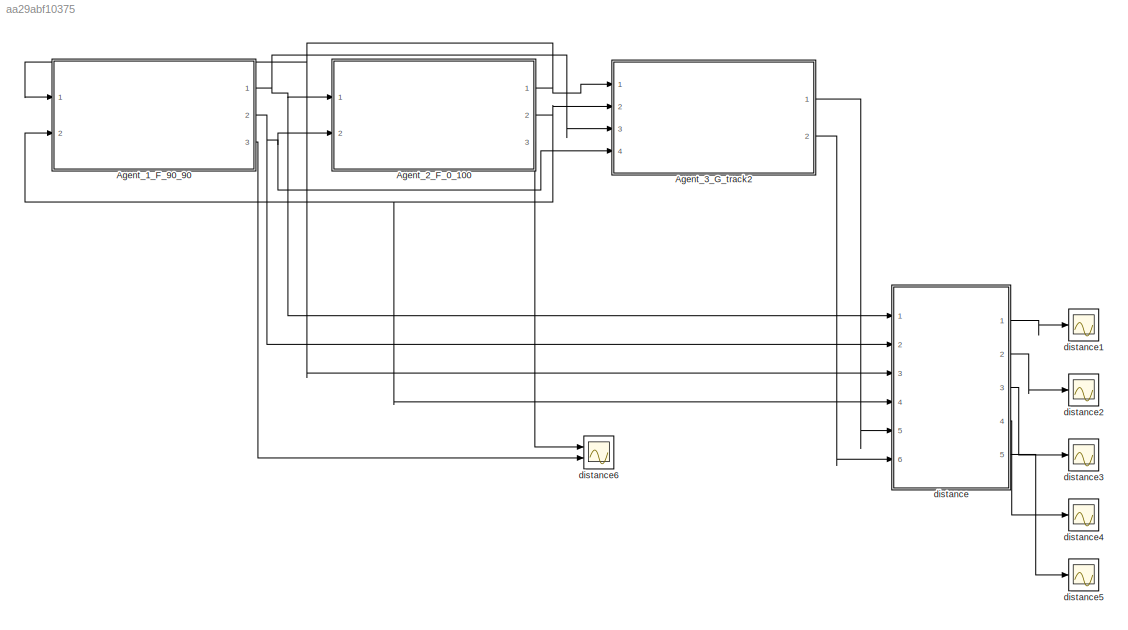
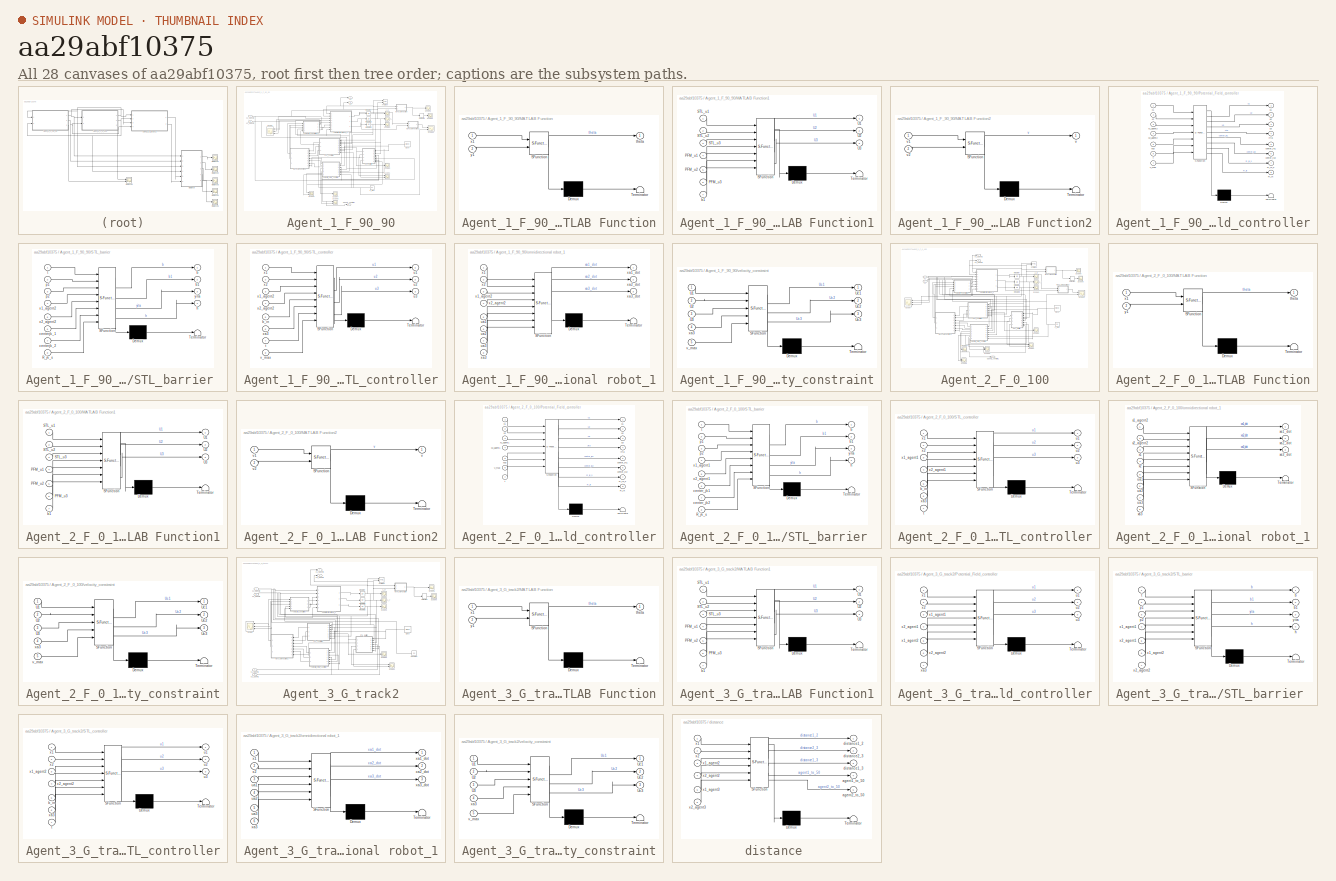
[diagram: thumbnail index - all 28 canvases of the model, root first then tree order]
MODEL slx_aa29abf10375
KIND model
CONFIG AbsTol = auto
CONFIG EnableMultiTasking = off
CONFIG FixedStep = 1e-2
CONFIG MaxStep = auto
CONFIG MinStep = auto
CONFIG RelTol = 1e-3
CONFIG SampleTimeConstraint = Unconstrained
CONFIG SolverName = FixedStepAuto
CONFIG StartTime = 0.0
CONFIG StopTime = 60.0
BLOCK [SubSystem] Agent_1_F_90_90
  Ports = [2, 3]
  RequestExecContextInheritance = off
BLOCK [Scope] Agent_1_F_90_90/1_a
  Floating = off
  NumInputPorts = 1
  Ports = [1]
  ScopeSpecificationString = Simulink.scopes.TimeScopeBlockCfg('CurrentConfiguration', extmgr.ConfigurationSet(extmgr.Configuration('Core','General UI',true),extmgr.Configuration('Core','Source UI',true),extmgr.Configuration('Sources','WiredSimulink',true,'DataLogging',true,'DataLoggingVariableName','x1','DataLoggingSaveFormat','StructureWithTime'),extmgr.Configuration('Visuals','Time Domain',true,'SerializedDisplays',{struct...<+1457ch>
BLOCK [Scope] Agent_1_F_90_90/1_y
  Floating = off
  NumInputPorts = 1
  Ports = [1]
  ScopeSpecificationString = Simulink.scopes.TimeScopeBlockCfg('CurrentConfiguration', extmgr.ConfigurationSet(extmgr.Configuration('Core','General UI',true),extmgr.Configuration('Core','Source UI',true),extmgr.Configuration('Sources','WiredSimulink',true,'DataLoggingVariableName','x2','DataLogging',true,'DataLoggingSaveFormat','StructureWithTime'),extmgr.Configuration('Visuals','Time Domain',true,'SerializedDisplays',{struct...<+1464ch>
BLOCK [Clock] Agent_1_F_90_90/Clock
  DisplayTime = on
BLOCK [Derivative] Agent_1_F_90_90/Derivative
BLOCK [Integrator] Agent_1_F_90_90/Integrator
  InitialCondition = 5
  Ports = [1, 1]
BLOCK [Integrator] Agent_1_F_90_90/Integrator1
  Ports = [1, 1]
BLOCK [Integrator] Agent_1_F_90_90/Integrator2
  Ports = [1, 1]
BLOCK [SubSystem] Agent_1_F_90_90/MATLAB Function
  ErrorFcn = Stateflow.Translate.translate
  PermitHierarchicalResolution = ExplicitOnly
  Ports = [2, 1]
  RequestExecContextInheritance = off
  SFBlockType = MATLAB Function
  TreatAsAtomicUnit = on
BLOCK [Demux] Agent_1_F_90_90/MATLAB Function/ Demux 
  Outputs = 1
  Ports = [1, 1]
BLOCK [S-Function] Agent_1_F_90_90/MATLAB Function/ SFunction 
  EnableBusSupport = on
  FunctionName = sf_sfun
  PortCounts = [2 2]
  Ports = [2, 2]
  SFcnIsStateOwnerBlock = off
  SFunctionDeploymentMode = off
  Tag = Stateflow S-Function 4
BLOCK [Terminator] Agent_1_F_90_90/MATLAB Function/ Terminator 
BLOCK [Outport] Agent_1_F_90_90/MATLAB Function/theta
  VectorParamsAs1DForOutWhenUnconnected = off
BLOCK [Inport] Agent_1_F_90_90/MATLAB Function/x1
BLOCK [Inport] Agent_1_F_90_90/MATLAB Function/y1
  Port = 2
BLOCK [SubSystem] Agent_1_F_90_90/MATLAB Function1
  ErrorFcn = Stateflow.Translate.translate
  PermitHierarchicalResolution = ExplicitOnly
  Ports = [7, 3]
  RequestExecContextInheritance = off
  SFBlockType = MATLAB Function
  TreatAsAtomicUnit = on
BLOCK [Demux] Agent_1_F_90_90/MATLAB Function1/ Demux 
  Outputs = 1
  Ports = [1, 1]
BLOCK [S-Function] Agent_1_F_90_90/MATLAB Function1/ SFunction 
  EnableBusSupport = on
  FunctionName = sf_sfun
  PortCounts = [7 4]
  Ports = [7, 4]
  SFcnIsStateOwnerBlock = off
  SFunctionDeploymentMode = off
  Tag = Stateflow S-Function 6
BLOCK [Terminator] Agent_1_F_90_90/MATLAB Function1/ Terminator 
BLOCK [Inport] Agent_1_F_90_90/MATLAB Function1/PFM_u1
  Port = 4
BLOCK [Inport] Agent_1_F_90_90/MATLAB Function1/PFM_u2
  Port = 5
BLOCK [Inport] Agent_1_F_90_90/MATLAB Function1/PFM_u3
  Port = 6
BLOCK [Inport] Agent_1_F_90_90/MATLAB Function1/STL_u1
BLOCK [Inport] Agent_1_F_90_90/MATLAB Function1/STL_u2
  Port = 2
BLOCK [Inport] Agent_1_F_90_90/MATLAB Function1/STL_u3
  Port = 3
BLOCK [Outport] Agent_1_F_90_90/MATLAB Function1/U1
BLOCK [Outport] Agent_1_F_90_90/MATLAB Function1/U2
  Port = 2
BLOCK [Outport] Agent_1_F_90_90/MATLAB Function1/U3
  Port = 3
BLOCK [Inport] Agent_1_F_90_90/MATLAB Function1/b1
  Port = 7
BLOCK [SubSystem] Agent_1_F_90_90/MATLAB Function2
  ErrorFcn = Stateflow.Translate.translate
  PermitHierarchicalResolution = ExplicitOnly
  Ports = [2, 1]
  RequestExecContextInheritance = off
  SFBlockType = MATLAB Function
  TreatAsAtomicUnit = on
BLOCK [Demux] Agent_1_F_90_90/MATLAB Function2/ Demux 
  Outputs = 1
  Ports = [1, 1]
BLOCK [S-Function] Agent_1_F_90_90/MATLAB Function2/ SFunction 
  EnableBusSupport = on
  FunctionName = sf_sfun
  PortCounts = [2 2]
  Ports = [2, 2]
  SFcnIsStateOwnerBlock = off
  SFunctionDeploymentMode = off
  Tag = Stateflow S-Function 20
BLOCK [Terminator] Agent_1_F_90_90/MATLAB Function2/ Terminator 
BLOCK [Outport] Agent_1_F_90_90/MATLAB Function2/v
  VectorParamsAs1DForOutWhenUnconnected = off
BLOCK [Inport] Agent_1_F_90_90/MATLAB Function2/v1
BLOCK [Inport] Agent_1_F_90_90/MATLAB Function2/v2
  Port = 2
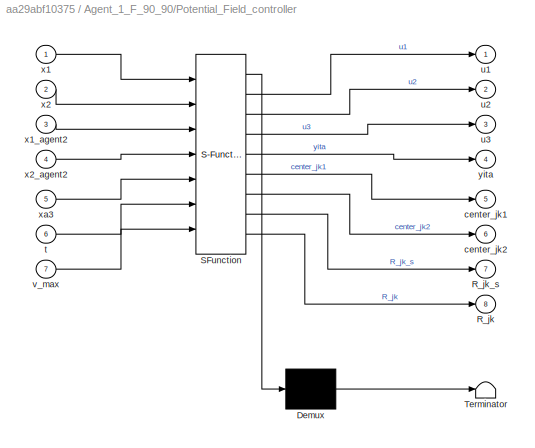
BLOCK [SubSystem] Agent_1_F_90_90/Potential_Field_controller
  ErrorFcn = Stateflow.Translate.translate
  PermitHierarchicalResolution = ExplicitOnly
  Ports = [7, 8]
  RequestExecContextInheritance = off
  SFBlockType = MATLAB Function
  TreatAsAtomicUnit = on
BLOCK [Demux] Agent_1_F_90_90/Potential_Field_controller/ Demux 
  Outputs = 1
  Ports = [1, 1]
BLOCK [S-Function] Agent_1_F_90_90/Potential_Field_controller/ SFunction 
  EnableBusSupport = on
  FunctionName = sf_sfun
  PortCounts = [7 9]
  Ports = [7, 9]
  SFcnIsStateOwnerBlock = off
  SFunctionDeploymentMode = off
  Tag = Stateflow S-Function 5
BLOCK [Terminator] Agent_1_F_90_90/Potential_Field_controller/ Terminator 
BLOCK [Outport] Agent_1_F_90_90/Potential_Field_controller/R_jk
  Port = 8
BLOCK [Outport] Agent_1_F_90_90/Potential_Field_controller/R_jk_s
  Port = 7
BLOCK [Outport] Agent_1_F_90_90/Potential_Field_controller/center_jk1
  Port = 5
BLOCK [Outport] Agent_1_F_90_90/Potential_Field_controller/center_jk2
  Port = 6
BLOCK [Inport] Agent_1_F_90_90/Potential_Field_controller/t
  Port = 6
BLOCK [Outport] Agent_1_F_90_90/Potential_Field_controller/u1
BLOCK [Outport] Agent_1_F_90_90/Potential_Field_controller/u2
  Port = 2
BLOCK [Outport] Agent_1_F_90_90/Potential_Field_controller/u3
  Port = 3
BLOCK [Inport] Agent_1_F_90_90/Potential_Field_controller/v_max
  Port = 7
BLOCK [Inport] Agent_1_F_90_90/Potential_Field_controller/x1
BLOCK [Inport] Agent_1_F_90_90/Potential_Field_controller/x1_agent2
  Port = 3
BLOCK [Inport] Agent_1_F_90_90/Potential_Field_controller/x2
  Port = 2
BLOCK [Inport] Agent_1_F_90_90/Potential_Field_controller/x2_agent2
  Port = 4
BLOCK [Inport] Agent_1_F_90_90/Potential_Field_controller/xa3
  Port = 5
BLOCK [Outport] Agent_1_F_90_90/Potential_Field_controller/yita
  Port = 4
BLOCK [SubSystem] Agent_1_F_90_90/STL_barrier 
  ErrorFcn = Stateflow.Translate.translate
  PermitHierarchicalResolution = ExplicitOnly
  Ports = [8, 4]
  RequestExecContextInheritance = off
  SFBlockType = MATLAB Function
  TreatAsAtomicUnit = on
BLOCK [Demux] Agent_1_F_90_90/STL_barrier / Demux 
  Outputs = 1
  Ports = [1, 1]
BLOCK [S-Function] Agent_1_F_90_90/STL_barrier / SFunction 
  EnableBusSupport = on
  FunctionName = sf_sfun
  PortCounts = [8 5]
  Ports = [8, 5]
  SFcnIsStateOwnerBlock = off
  SFunctionDeploymentMode = off
  Tag = Stateflow S-Function 1
BLOCK [Terminator] Agent_1_F_90_90/STL_barrier / Terminator 
BLOCK [Inport] Agent_1_F_90_90/STL_barrier /R_jk_s
  Port = 8
BLOCK [Outport] Agent_1_F_90_90/STL_barrier /b
BLOCK [Outport] Agent_1_F_90_90/STL_barrier /b1
  Port = 2
BLOCK [Inport] Agent_1_F_90_90/STL_barrier /centerjk_1
  Port = 6
BLOCK [Inport] Agent_1_F_90_90/STL_barrier /centerjk_2
  Port = 7
BLOCK [Outport] Agent_1_F_90_90/STL_barrier /h
  Port = 4
  VectorParamsAs1DForOutWhenUnconnected = off
BLOCK [Inport] Agent_1_F_90_90/STL_barrier /p1
  Port = 2
BLOCK [Inport] Agent_1_F_90_90/STL_barrier /p2
  Port = 3
BLOCK [Inport] Agent_1_F_90_90/STL_barrier /t
BLOCK [Inport] Agent_1_F_90_90/STL_barrier /x1_agent2
  Port = 4
BLOCK [Inport] Agent_1_F_90_90/STL_barrier /x2_agent2
  Port = 5
BLOCK [Outport] Agent_1_F_90_90/STL_barrier /yita
  Port = 3
  VectorParamsAs1DForOutWhenUnconnected = off
BLOCK [SubSystem] Agent_1_F_90_90/STL_controller
  ErrorFcn = Stateflow.Translate.translate
  PermitHierarchicalResolution = ExplicitOnly
  Ports = [8, 3]
  RequestExecContextInheritance = off
  SFBlockType = MATLAB Function
  TreatAsAtomicUnit = on
BLOCK [Demux] Agent_1_F_90_90/STL_controller/ Demux 
  Outputs = 1
  Ports = [1, 1]
BLOCK [S-Function] Agent_1_F_90_90/STL_controller/ SFunction 
  EnableBusSupport = on
  FunctionName = sf_sfun
  PortCounts = [8 4]
  Ports = [8, 4]
  SFcnIsStateOwnerBlock = off
  SFunctionDeploymentMode = off
  Tag = Stateflow S-Function 3
BLOCK [Terminator] Agent_1_F_90_90/STL_controller/ Terminator 
BLOCK [Inport] Agent_1_F_90_90/STL_controller/b_in
  Port = 5
BLOCK [Inport] Agent_1_F_90_90/STL_controller/t
  Port = 7
BLOCK [Outport] Agent_1_F_90_90/STL_controller/u1
BLOCK [Outport] Agent_1_F_90_90/STL_controller/u2
  Port = 2
BLOCK [Outport] Agent_1_F_90_90/STL_controller/u3
  Port = 3
BLOCK [Inport] Agent_1_F_90_90/STL_controller/v_max
  Port = 8
BLOCK [Inport] Agent_1_F_90_90/STL_controller/x1
BLOCK [Inport] Agent_1_F_90_90/STL_controller/x1_agent2
  Port = 3
BLOCK [Inport] Agent_1_F_90_90/STL_controller/x2
  Port = 2
BLOCK [Inport] Agent_1_F_90_90/STL_controller/x2_agent2
  Port = 4
BLOCK [Inport] Agent_1_F_90_90/STL_controller/xa3
  Port = 6
BLOCK [Scope] Agent_1_F_90_90/Scope
  Floating = off
  NumInputPorts = 3
  Ports = [3]
  ScopeSpecificationString = Simulink.scopes.TimeScopeBlockCfg('CurrentConfiguration', extmgr.ConfigurationSet(extmgr.Configuration('Core','General UI',true),extmgr.Configuration('Core','Source UI',true),extmgr.Configuration('Sources','WiredSimulink',true,'DataLoggingVariableName','U_3','DataLogging',true,'DataLoggingSaveFormat','StructureWithTime'),extmgr.Configuration('Visuals','Time Domain',true,'SerializedDisplays',{struc...<+1609ch>
BLOCK [Scope] Agent_1_F_90_90/Scope1
  Floating = off
  NumInputPorts = 2
  Ports = [2]
  ScopeSpecificationString = Simulink.scopes.TimeScopeBlockCfg('CurrentConfiguration', extmgr.ConfigurationSet(extmgr.Configuration('Core','General UI',true),extmgr.Configuration('Core','Source UI',true),extmgr.Configuration('Sources','WiredSimulink',true,'DataLoggingVariableName','h_and_yita','DataLogging',true,'DataLoggingSaveFormat','StructureWithTime'),extmgr.Configuration('Visuals','Time Domain',true,'SerializedDisplays'...<+1609ch>
BLOCK [Scope] Agent_1_F_90_90/Scope2
  Floating = off
  NumInputPorts = 1
  Ports = [1]
  ScopeSpecificationString = Simulink.scopes.TimeScopeBlockCfg('CurrentConfiguration', extmgr.ConfigurationSet(extmgr.Configuration('Core','General UI',true),extmgr.Configuration('Core','Source UI',true),extmgr.Configuration('Sources','WiredSimulink',true,'DataLoggingVariableName','ScopeData4'),extmgr.Configuration('Visuals','Time Domain',true,'SerializedDisplays',{struct('MinYLimReal','-86.93912','MaxYLimReal','9.6599','YLab...<+1448ch>
BLOCK [Scope] Agent_1_F_90_90/Scope3
  Floating = off
  NumInputPorts = 1
  Ports = [1]
  ScopeSpecificationString = Simulink.scopes.TimeScopeBlockCfg('CurrentConfiguration', extmgr.ConfigurationSet(extmgr.Configuration('Core','General UI',true),extmgr.Configuration('Core','Source UI',true),extmgr.Configuration('Sources','WiredSimulink',true,'DataLoggingVariableName','ScopeData5'),extmgr.Configuration('Visuals','Time Domain',true,'SerializedDisplays',{struct('MinYLimReal','-0.32186','MaxYLimReal','2.89674','YLab...<+1448ch>
BLOCK [Scope] Agent_1_F_90_90/Scope4
  Floating = off
  NumInputPorts = 2
  Ports = [2]
  ScopeSpecificationString = Simulink.scopes.TimeScopeBlockCfg('CurrentConfiguration', extmgr.ConfigurationSet(extmgr.Configuration('Core','General UI',true),extmgr.Configuration('Core','Source UI',true),extmgr.Configuration('Sources','WiredSimulink',true,'DataLoggingVariableName','ScopeData1'),extmgr.Configuration('Visuals','Time Domain',true,'SerializedDisplays',{struct('MinYLimReal','-6.02015','MaxYLimReal','56.22446','YLa...<+1462ch>
BLOCK [Scope] Agent_1_F_90_90/Scope5
  Floating = off
  NumInputPorts = 1
  Ports = [1]
  ScopeSpecificationString = Simulink.scopes.TimeScopeBlockCfg('CurrentConfiguration', extmgr.ConfigurationSet(extmgr.Configuration('Core','General UI',true),extmgr.Configuration('Core','Source UI',true),extmgr.Configuration('Sources','WiredSimulink',true,'DataLoggingVariableName','ScopeData7'),extmgr.Configuration('Visuals','Time Domain',true,'SerializedDisplays',{struct('MinYLimReal','-1.76715','MaxYLimReal','0.19635','YLab...<+1439ch>
BLOCK [Scope] Agent_1_F_90_90/Scope6
  Floating = off
  NumInputPorts = 1
  Ports = [1]
  ScopeSpecificationString = Simulink.scopes.TimeScopeBlockCfg('CurrentConfiguration', extmgr.ConfigurationSet(extmgr.Configuration('Core','General UI',true),extmgr.Configuration('Core','Source UI',true),extmgr.Configuration('Sources','WiredSimulink',true),extmgr.Configuration('Visuals','Time Domain',true,'SerializedDisplays',{struct('MinYLimReal','-0.5189','MaxYLimReal','3.73042','YLabelReal','','MinYLimMag','0.00000','MaxYL...<+1401ch>
BLOCK [Scope] Agent_1_F_90_90/Scope7
  Floating = off
  NumInputPorts = 1
  Ports = [1]
  ScopeSpecificationString = Simulink.scopes.TimeScopeBlockCfg('CurrentConfiguration', extmgr.ConfigurationSet(extmgr.Configuration('Core','General UI',true),extmgr.Configuration('Core','Source UI',true),extmgr.Configuration('Sources','WiredSimulink',true,'DataLoggingVariableName','ScopeData1'),extmgr.Configuration('Visuals','Time Domain',true,'SerializedDisplays',{struct('MinYLimReal','-13119.52201','MaxYLimReal','118075.698...<+1453ch>
BLOCK [Scope] Agent_1_F_90_90/Scope8
  Floating = off
  NumInputPorts = 2
  Ports = [2]
  ScopeSpecificationString = Simulink.scopes.TimeScopeBlockCfg('CurrentConfiguration', extmgr.ConfigurationSet(extmgr.Configuration('Core','General UI',true),extmgr.Configuration('Core','Source UI',true),extmgr.Configuration('Sources','WiredSimulink',true,'DataLoggingVariableName','centerjk_agent1','DataLogging',true,'DataLoggingSaveFormat','StructureWithTime'),extmgr.Configuration('Visuals','Time Domain',true,'SerializedDisp...<+1580ch>
BLOCK [Scope] Agent_1_F_90_90/Scope9
  Floating = off
  NumInputPorts = 2
  Ports = [2]
  ScopeSpecificationString = Simulink.scopes.TimeScopeBlockCfg('CurrentConfiguration', extmgr.ConfigurationSet(extmgr.Configuration('Core','General UI',true),extmgr.Configuration('Core','Source UI',true),extmgr.Configuration('Sources','WiredSimulink',true,'DataLoggingVariableName','ScopeData2'),extmgr.Configuration('Visuals','Time Domain',true,'SerializedDisplays',{struct('MinYLimReal','-3.33998','MaxYLimReal','30.05978','YLa...<+1795ch>
BLOCK [Reference] Agent_1_F_90_90/XY Graph  REF=simulink/Sinks/XY Graph
  Ports = [2]
  SourceBlock = simulink/Sinks/XY Graph
  SourceProductBaseCode = SL
  SourceType = XY scope.
BLOCK [Outport] Agent_1_F_90_90/agent1_centerjk1
  Port = 3
BLOCK [SubSystem] Agent_1_F_90_90/omnidirectional robot_1
  ErrorFcn = Stateflow.Translate.translate
  PermitHierarchicalResolution = ExplicitOnly
  Ports = [8, 3]
  RequestExecContextInheritance = off
  SFBlockType = MATLAB Function
  TreatAsAtomicUnit = on
BLOCK [Demux] Agent_1_F_90_90/omnidirectional robot_1/ Demux 
  Outputs = 1
  Ports = [1, 1]
BLOCK [S-Function] Agent_1_F_90_90/omnidirectional robot_1/ SFunction 
  EnableBusSupport = on
  FunctionName = sf_sfun
  PortCounts = [8 4]
  Ports = [8, 4]
  SFcnIsStateOwnerBlock = off
  SFunctionDeploymentMode = off
  Tag = Stateflow S-Function 2
BLOCK [Terminator] Agent_1_F_90_90/omnidirectional robot_1/ Terminator 
BLOCK [Inport] Agent_1_F_90_90/omnidirectional robot_1/ua1
  Port = 5
BLOCK [Inport] Agent_1_F_90_90/omnidirectional robot_1/ua2
  Port = 6
BLOCK [Inport] Agent_1_F_90_90/omnidirectional robot_1/ua3
  Port = 7
BLOCK [Inport] Agent_1_F_90_90/omnidirectional robot_1/x1
BLOCK [Inport] Agent_1_F_90_90/omnidirectional robot_1/x1_agent2
  Port = 3
BLOCK [Inport] Agent_1_F_90_90/omnidirectional robot_1/x2
  Port = 2
BLOCK [Inport] Agent_1_F_90_90/omnidirectional robot_1/x2_agent2
  Port = 4
BLOCK [Outport] Agent_1_F_90_90/omnidirectional robot_1/xa1_dot
BLOCK [Outport] Agent_1_F_90_90/omnidirectional robot_1/xa2_dot
  Port = 2
BLOCK [Inport] Agent_1_F_90_90/omnidirectional robot_1/xa3
  Port = 8
BLOCK [Outport] Agent_1_F_90_90/omnidirectional robot_1/xa3_dot
  Port = 3
BLOCK [Constant] Agent_1_F_90_90/v_max
  Value = 50
BLOCK [SubSystem] Agent_1_F_90_90/velocity_constraint
  ErrorFcn = Stateflow.Translate.translate
  PermitHierarchicalResolution = ExplicitOnly
  Ports = [5, 3]
  RequestExecContextInheritance = off
  SFBlockType = MATLAB Function
  TreatAsAtomicUnit = on
BLOCK [Demux] Agent_1_F_90_90/velocity_constraint/ Demux 
  Outputs = 1
  Ports = [1, 1]
BLOCK [S-Function] Agent_1_F_90_90/velocity_constraint/ SFunction 
  EnableBusSupport = on
  FunctionName = sf_sfun
  PortCounts = [5 4]
  Ports = [5, 4]
  SFcnIsStateOwnerBlock = off
  SFunctionDeploymentMode = off
  Tag = Stateflow S-Function 21
BLOCK [Terminator] Agent_1_F_90_90/velocity_constraint/ Terminator 
BLOCK [Inport] Agent_1_F_90_90/velocity_constraint/U1
BLOCK [Inport] Agent_1_F_90_90/velocity_constraint/U2
  Port = 2
BLOCK [Inport] Agent_1_F_90_90/velocity_constraint/U3
  Port = 3
BLOCK [Outport] Agent_1_F_90_90/velocity_constraint/Uc1
BLOCK [Outport] Agent_1_F_90_90/velocity_constraint/Uc2
  Port = 2
BLOCK [Outport] Agent_1_F_90_90/velocity_constraint/Uc3
  Port = 3
BLOCK [Inport] Agent_1_F_90_90/velocity_constraint/v_max
  Port = 5
BLOCK [Inport] Agent_1_F_90_90/velocity_constraint/xa3
  Port = 4
BLOCK [Outport] Agent_1_F_90_90/x1
BLOCK [Inport] Agent_1_F_90_90/x1_agent2
BLOCK [Outport] Agent_1_F_90_90/x2
  Port = 2
BLOCK [Inport] Agent_1_F_90_90/x2_agent2
  Port = 2
BLOCK [SubSystem] Agent_2_F_0_100
  Ports = [2, 3]
  RequestExecContextInheritance = off
BLOCK [Scope] Agent_2_F_0_100/1_a
  Floating = off
  NumInputPorts = 1
  Ports = [1]
  ScopeSpecificationString = Simulink.scopes.TimeScopeBlockCfg('CurrentConfiguration', extmgr.ConfigurationSet(extmgr.Configuration('Core','General UI',true),extmgr.Configuration('Core','Source UI',true),extmgr.Configuration('Sources','WiredSimulink',true,'DataLogging',true,'DataLoggingVariableName','x1_agent2','DataLoggingSaveFormat','StructureWithTime'),extmgr.Configuration('Visuals','Time Domain',true,'SerializedDisplays',...<+1468ch>
BLOCK [Scope] Agent_2_F_0_100/1_y
  Floating = off
  NumInputPorts = 1
  Ports = [1]
  ScopeSpecificationString = Simulink.scopes.TimeScopeBlockCfg('CurrentConfiguration', extmgr.ConfigurationSet(extmgr.Configuration('Core','General UI',true),extmgr.Configuration('Core','Source UI',true),extmgr.Configuration('Sources','WiredSimulink',true,'DataLoggingVariableName','x2_agent2','DataLogging',true,'DataLoggingSaveFormat','StructureWithTime'),extmgr.Configuration('Visuals','Time Domain',true,'SerializedDisplays',...<+1475ch>
BLOCK [Clock] Agent_2_F_0_100/Clock
  DisplayTime = on
BLOCK [Derivative] Agent_2_F_0_100/Derivative
BLOCK [Integrator] Agent_2_F_0_100/Integrator
  InitialCondition = 95
  Ports = [1, 1]
BLOCK [Integrator] Agent_2_F_0_100/Integrator1
  Ports = [1, 1]
BLOCK [Integrator] Agent_2_F_0_100/Integrator2
  Ports = [1, 1]
BLOCK [SubSystem] Agent_2_F_0_100/MATLAB Function
  ErrorFcn = Stateflow.Translate.translate
  PermitHierarchicalResolution = ExplicitOnly
  Ports = [2, 1]
  RequestExecContextInheritance = off
  SFBlockType = MATLAB Function
  TreatAsAtomicUnit = on
BLOCK [Demux] Agent_2_F_0_100/MATLAB Function/ Demux 
  Outputs = 1
  Ports = [1, 1]
BLOCK [S-Function] Agent_2_F_0_100/MATLAB Function/ SFunction 
  EnableBusSupport = on
  FunctionName = sf_sfun
  PortCounts = [2 2]
  Ports = [2, 2]
  SFcnIsStateOwnerBlock = off
  SFunctionDeploymentMode = off
  Tag = Stateflow S-Function 7
BLOCK [Terminator] Agent_2_F_0_100/MATLAB Function/ Terminator 
BLOCK [Outport] Agent_2_F_0_100/MATLAB Function/theta
  VectorParamsAs1DForOutWhenUnconnected = off
BLOCK [Inport] Agent_2_F_0_100/MATLAB Function/x1
BLOCK [Inport] Agent_2_F_0_100/MATLAB Function/y1
  Port = 2
BLOCK [SubSystem] Agent_2_F_0_100/MATLAB Function1
  ErrorFcn = Stateflow.Translate.translate
  PermitHierarchicalResolution = ExplicitOnly
  Ports = [7, 3]
  RequestExecContextInheritance = off
  SFBlockType = MATLAB Function
  TreatAsAtomicUnit = on
BLOCK [Demux] Agent_2_F_0_100/MATLAB Function1/ Demux 
  Outputs = 1
  Ports = [1, 1]
BLOCK [S-Function] Agent_2_F_0_100/MATLAB Function1/ SFunction 
  EnableBusSupport = on
  FunctionName = sf_sfun
  PortCounts = [7 4]
  Ports = [7, 4]
  SFcnIsStateOwnerBlock = off
  SFunctionDeploymentMode = off
  Tag = Stateflow S-Function 8
BLOCK [Terminator] Agent_2_F_0_100/MATLAB Function1/ Terminator 
BLOCK [Inport] Agent_2_F_0_100/MATLAB Function1/PFM_u1
  Port = 4
BLOCK [Inport] Agent_2_F_0_100/MATLAB Function1/PFM_u2
  Port = 5
BLOCK [Inport] Agent_2_F_0_100/MATLAB Function1/PFM_u3
  Port = 6
BLOCK [Inport] Agent_2_F_0_100/MATLAB Function1/STL_u1
BLOCK [Inport] Agent_2_F_0_100/MATLAB Function1/STL_u2
  Port = 2
BLOCK [Inport] Agent_2_F_0_100/MATLAB Function1/STL_u3
  Port = 3
BLOCK [Outport] Agent_2_F_0_100/MATLAB Function1/U1
BLOCK [Outport] Agent_2_F_0_100/MATLAB Function1/U2
  Port = 2
BLOCK [Outport] Agent_2_F_0_100/MATLAB Function1/U3
  Port = 3
BLOCK [Inport] Agent_2_F_0_100/MATLAB Function1/b1
  Port = 7
BLOCK [SubSystem] Agent_2_F_0_100/MATLAB Function2
  ErrorFcn = Stateflow.Translate.translate
  PermitHierarchicalResolution = ExplicitOnly
  Ports = [2, 1]
  RequestExecContextInheritance = off
  SFBlockType = MATLAB Function
  TreatAsAtomicUnit = on
BLOCK [Demux] Agent_2_F_0_100/MATLAB Function2/ Demux 
  Outputs = 1
  Ports = [1, 1]
BLOCK [S-Function] Agent_2_F_0_100/MATLAB Function2/ SFunction 
  EnableBusSupport = on
  FunctionName = sf_sfun
  PortCounts = [2 2]
  Ports = [2, 2]
  SFcnIsStateOwnerBlock = off
  SFunctionDeploymentMode = off
  Tag = Stateflow S-Function 23
BLOCK [Terminator] Agent_2_F_0_100/MATLAB Function2/ Terminator 
BLOCK [Outport] Agent_2_F_0_100/MATLAB Function2/v
  VectorParamsAs1DForOutWhenUnconnected = off
BLOCK [Inport] Agent_2_F_0_100/MATLAB Function2/v1
BLOCK [Inport] Agent_2_F_0_100/MATLAB Function2/v2
  Port = 2
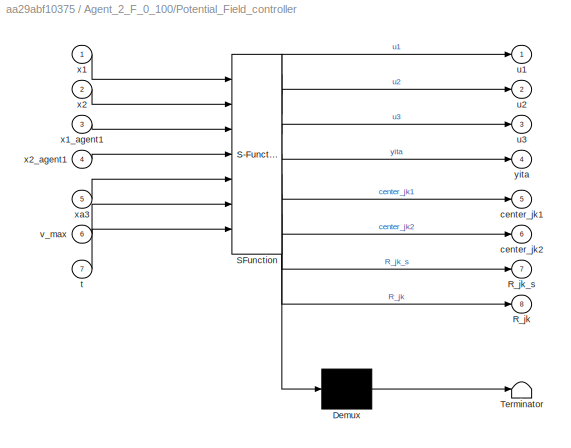
BLOCK [SubSystem] Agent_2_F_0_100/Potential_Field_controller
  ErrorFcn = Stateflow.Translate.translate
  PermitHierarchicalResolution = ExplicitOnly
  Ports = [7, 8]
  RequestExecContextInheritance = off
  SFBlockType = MATLAB Function
  TreatAsAtomicUnit = on
BLOCK [Demux] Agent_2_F_0_100/Potential_Field_controller/ Demux 
  Outputs = 1
  Ports = [1, 1]
BLOCK [S-Function] Agent_2_F_0_100/Potential_Field_controller/ SFunction 
  EnableBusSupport = on
  FunctionName = sf_sfun
  PortCounts = [7 9]
  Ports = [7, 9]
  SFcnIsStateOwnerBlock = off
  SFunctionDeploymentMode = off
  Tag = Stateflow S-Function 13
BLOCK [Terminator] Agent_2_F_0_100/Potential_Field_controller/ Terminator 
BLOCK [Outport] Agent_2_F_0_100/Potential_Field_controller/R_jk
  Port = 8
BLOCK [Outport] Agent_2_F_0_100/Potential_Field_controller/R_jk_s
  Port = 7
BLOCK [Outport] Agent_2_F_0_100/Potential_Field_controller/center_jk1
  Port = 5
BLOCK [Outport] Agent_2_F_0_100/Potential_Field_controller/center_jk2
  Port = 6
BLOCK [Inport] Agent_2_F_0_100/Potential_Field_controller/t
  Port = 7
BLOCK [Outport] Agent_2_F_0_100/Potential_Field_controller/u1
BLOCK [Outport] Agent_2_F_0_100/Potential_Field_controller/u2
  Port = 2
BLOCK [Outport] Agent_2_F_0_100/Potential_Field_controller/u3
  Port = 3
BLOCK [Inport] Agent_2_F_0_100/Potential_Field_controller/v_max
  Port = 6
BLOCK [Inport] Agent_2_F_0_100/Potential_Field_controller/x1
BLOCK [Inport] Agent_2_F_0_100/Potential_Field_controller/x1_agent1
  Port = 3
BLOCK [Inport] Agent_2_F_0_100/Potential_Field_controller/x2
  Port = 2
BLOCK [Inport] Agent_2_F_0_100/Potential_Field_controller/x2_agent1
  Port = 4
BLOCK [Inport] Agent_2_F_0_100/Potential_Field_controller/xa3
  Port = 5
BLOCK [Outport] Agent_2_F_0_100/Potential_Field_controller/yita
  Port = 4
BLOCK [SubSystem] Agent_2_F_0_100/STL_barrier 
  ErrorFcn = Stateflow.Translate.translate
  PermitHierarchicalResolution = ExplicitOnly
  Ports = [8, 4]
  RequestExecContextInheritance = off
  SFBlockType = MATLAB Function
  TreatAsAtomicUnit = on
BLOCK [Demux] Agent_2_F_0_100/STL_barrier / Demux 
  Outputs = 1
  Ports = [1, 1]
BLOCK [S-Function] Agent_2_F_0_100/STL_barrier / SFunction 
  EnableBusSupport = on
  FunctionName = sf_sfun
  PortCounts = [8 5]
  Ports = [8, 5]
  SFcnIsStateOwnerBlock = off
  SFunctionDeploymentMode = off
  Tag = Stateflow S-Function 10
BLOCK [Terminator] Agent_2_F_0_100/STL_barrier / Terminator 
BLOCK [Inport] Agent_2_F_0_100/STL_barrier /R_jk_s
  Port = 8
BLOCK [Outport] Agent_2_F_0_100/STL_barrier /b
BLOCK [Outport] Agent_2_F_0_100/STL_barrier /b1
  Port = 2
BLOCK [Inport] Agent_2_F_0_100/STL_barrier /center_jk1
  Port = 6
BLOCK [Inport] Agent_2_F_0_100/STL_barrier /center_jk2
  Port = 7
BLOCK [Outport] Agent_2_F_0_100/STL_barrier /h
  Port = 4
  VectorParamsAs1DForOutWhenUnconnected = off
BLOCK [Inport] Agent_2_F_0_100/STL_barrier /p1
  Port = 2
BLOCK [Inport] Agent_2_F_0_100/STL_barrier /p2
  Port = 3
BLOCK [Inport] Agent_2_F_0_100/STL_barrier /t
BLOCK [Inport] Agent_2_F_0_100/STL_barrier /x1_agent1
  Port = 4
BLOCK [Inport] Agent_2_F_0_100/STL_barrier /x2_agent1
  Port = 5
BLOCK [Outport] Agent_2_F_0_100/STL_barrier /yita
  Port = 3
  VectorParamsAs1DForOutWhenUnconnected = off
BLOCK [SubSystem] Agent_2_F_0_100/STL_controller
  ErrorFcn = Stateflow.Translate.translate
  PermitHierarchicalResolution = ExplicitOnly
  Ports = [7, 3]
  RequestExecContextInheritance = off
  SFBlockType = MATLAB Function
  TreatAsAtomicUnit = on
BLOCK [Demux] Agent_2_F_0_100/STL_controller/ Demux 
  Outputs = 1
  Ports = [1, 1]
BLOCK [S-Function] Agent_2_F_0_100/STL_controller/ SFunction 
  EnableBusSupport = on
  FunctionName = sf_sfun
  PortCounts = [7 4]
  Ports = [7, 4]
  SFcnIsStateOwnerBlock = off
  SFunctionDeploymentMode = off
  Tag = Stateflow S-Function 11
BLOCK [Terminator] Agent_2_F_0_100/STL_controller/ Terminator 
BLOCK [Inport] Agent_2_F_0_100/STL_controller/b_in
  Port = 5
BLOCK [Inport] Agent_2_F_0_100/STL_controller/t
  Port = 7
BLOCK [Outport] Agent_2_F_0_100/STL_controller/u1
BLOCK [Outport] Agent_2_F_0_100/STL_controller/u2
  Port = 2
BLOCK [Outport] Agent_2_F_0_100/STL_controller/u3
  Port = 3
BLOCK [Inport] Agent_2_F_0_100/STL_controller/x1
BLOCK [Inport] Agent_2_F_0_100/STL_controller/x1_agent1
  Port = 3
BLOCK [Inport] Agent_2_F_0_100/STL_controller/x2
  Port = 2
BLOCK [Inport] Agent_2_F_0_100/STL_controller/x2_agent1
  Port = 4
BLOCK [Inport] Agent_2_F_0_100/STL_controller/xa3
  Port = 6
BLOCK [Scope] Agent_2_F_0_100/Scope
  Floating = off
  NumInputPorts = 3
  Ports = [3]
  ScopeSpecificationString = Simulink.scopes.TimeScopeBlockCfg('CurrentConfiguration', extmgr.ConfigurationSet(extmgr.Configuration('Core','General UI',true),extmgr.Configuration('Core','Source UI',true),extmgr.Configuration('Sources','WiredSimulink',true,'DataLoggingVariableName','U_3_agent2','DataLogging',true,'DataLoggingSaveFormat','StructureWithTime'),extmgr.Configuration('Visuals','Time Domain',true,'SerializedDisplays'...<+1615ch>
BLOCK [Scope] Agent_2_F_0_100/Scope1
  Floating = off
  NumInputPorts = 2
  Ports = [2]
  ScopeSpecificationString = Simulink.scopes.TimeScopeBlockCfg('CurrentConfiguration', extmgr.ConfigurationSet(extmgr.Configuration('Core','General UI',true),extmgr.Configuration('Core','Source UI',true),extmgr.Configuration('Sources','WiredSimulink',true,'DataLoggingVariableName','h_and_yita_agent2','DataLogging',true,'DataLoggingSaveFormat','StructureWithTime'),extmgr.Configuration('Visuals','Time Domain',true,'SerializedDi...<+1588ch>
BLOCK [Scope] Agent_2_F_0_100/Scope2
  Floating = off
  NumInputPorts = 1
  Ports = [1]
  ScopeSpecificationString = Simulink.scopes.TimeScopeBlockCfg('CurrentConfiguration', extmgr.ConfigurationSet(extmgr.Configuration('Core','General UI',true),extmgr.Configuration('Core','Source UI',true),extmgr.Configuration('Sources','WiredSimulink',true,'DataLoggingVariableName','ScopeData4'),extmgr.Configuration('Visuals','Time Domain',true,'SerializedDisplays',{struct('MinYLimReal','-86.93912','MaxYLimReal','9.6599','YLab...<+1448ch>
BLOCK [Scope] Agent_2_F_0_100/Scope3
  Floating = off
  NumInputPorts = 1
  Ports = [1]
  ScopeSpecificationString = Simulink.scopes.TimeScopeBlockCfg('CurrentConfiguration', extmgr.ConfigurationSet(extmgr.Configuration('Core','General UI',true),extmgr.Configuration('Core','Source UI',true),extmgr.Configuration('Sources','WiredSimulink',true,'DataLoggingVariableName','ScopeData5'),extmgr.Configuration('Visuals','Time Domain',true,'SerializedDisplays',{struct('MinYLimReal','-0.05134','MaxYLimReal','0.15798','YLab...<+1447ch>
BLOCK [Scope] Agent_2_F_0_100/Scope4
  Floating = off
  NumInputPorts = 2
  Ports = [2]
  ScopeSpecificationString = Simulink.scopes.TimeScopeBlockCfg('CurrentConfiguration', extmgr.ConfigurationSet(extmgr.Configuration('Core','General UI',true),extmgr.Configuration('Core','Source UI',true),extmgr.Configuration('Sources','WiredSimulink',true,'DataLoggingVariableName','ScopeData2'),extmgr.Configuration('Visuals','Time Domain',true,'SerializedDisplays',{struct('MinYLimReal','-6.22225','MaxYLimReal','56.24692','YLa...<+1794ch>
BLOCK [Scope] Agent_2_F_0_100/Scope5
  Floating = off
  NumInputPorts = 1
  Ports = [1]
  ScopeSpecificationString = Simulink.scopes.TimeScopeBlockCfg('CurrentConfiguration', extmgr.ConfigurationSet(extmgr.Configuration('Core','General UI',true),extmgr.Configuration('Core','Source UI',true),extmgr.Configuration('Sources','WiredSimulink',true,'DataLoggingVariableName','ScopeData7'),extmgr.Configuration('Visuals','Time Domain',true,'SerializedDisplays',{struct('MinYLimReal','-0.19206','MaxYLimReal','1.72858','YLab...<+1448ch>
BLOCK [Scope] Agent_2_F_0_100/Scope6
  Floating = off
  NumInputPorts = 1
  Ports = [1]
  ScopeSpecificationString = Simulink.scopes.TimeScopeBlockCfg('CurrentConfiguration', extmgr.ConfigurationSet(extmgr.Configuration('Core','General UI',true),extmgr.Configuration('Core','Source UI',true),extmgr.Configuration('Sources','WiredSimulink',true),extmgr.Configuration('Visuals','Time Domain',true,'SerializedDisplays',{struct('MinYLimReal','-7436.0344','MaxYLimReal','66924.30119','YLabelReal','','MinYLimMag','  0.0000...<+1430ch>
BLOCK [Scope] Agent_2_F_0_100/Scope7
  Floating = off
  NumInputPorts = 1
  Ports = [1]
  ScopeSpecificationString = Simulink.scopes.TimeScopeBlockCfg('CurrentConfiguration', extmgr.ConfigurationSet(extmgr.Configuration('Core','General UI',true),extmgr.Configuration('Core','Source UI',true),extmgr.Configuration('Sources','WiredSimulink',true,'DataLoggingVariableName','ScopeData1'),extmgr.Configuration('Visuals','Time Domain',true,'SerializedDisplays',{struct('MinYLimReal','-1516.75087','MaxYLimReal','13650.75786...<+1416ch>
BLOCK [Scope] Agent_2_F_0_100/Scope8
  Floating = off
  NumInputPorts = 2
  Ports = [2]
  ScopeSpecificationString = Simulink.scopes.TimeScopeBlockCfg('CurrentConfiguration', extmgr.ConfigurationSet(extmgr.Configuration('Core','General UI',true),extmgr.Configuration('Core','Source UI',true),extmgr.Configuration('Sources','WiredSimulink',true,'DataLoggingVariableName','centerjk_agent2','DataLogging',true,'DataLoggingSaveFormat','StructureWithTime'),extmgr.Configuration('Visuals','Time Domain',true,'SerializedDisp...<+1581ch>
BLOCK [Scope] Agent_2_F_0_100/Scope9
  Floating = off
  NumInputPorts = 2
  Ports = [2]
  ScopeSpecificationString = Simulink.scopes.TimeScopeBlockCfg('CurrentConfiguration', extmgr.ConfigurationSet(extmgr.Configuration('Core','General UI',true),extmgr.Configuration('Core','Source UI',true),extmgr.Configuration('Sources','WiredSimulink',true,'DataLoggingVariableName','ScopeData3'),extmgr.Configuration('Visuals','Time Domain',true,'SerializedDisplays',{struct('MinYLimReal','7.32321','MaxYLimReal','17.2541','YLabe...<+1499ch>
BLOCK [Reference] Agent_2_F_0_100/XY Graph  REF=simulink/Sinks/XY Graph
  Ports = [2]
  SourceBlock = simulink/Sinks/XY Graph
  SourceProductBaseCode = SL
  SourceType = XY scope.
BLOCK [Outport] Agent_2_F_0_100/agent2_centerjk1
  Port = 3
BLOCK [SubSystem] Agent_2_F_0_100/omnidirectional robot_1
  ErrorFcn = Stateflow.Translate.translate
  PermitHierarchicalResolution = ExplicitOnly
  Ports = [8, 3]
  RequestExecContextInheritance = off
  SFBlockType = MATLAB Function
  TreatAsAtomicUnit = on
BLOCK [Demux] Agent_2_F_0_100/omnidirectional robot_1/ Demux 
  Outputs = 1
  Ports = [1, 1]
BLOCK [S-Function] Agent_2_F_0_100/omnidirectional robot_1/ SFunction 
  EnableBusSupport = on
  FunctionName = sf_sfun
  PortCounts = [8 4]
  Ports = [8, 4]
  SFcnIsStateOwnerBlock = off
  SFunctionDeploymentMode = off
  Tag = Stateflow S-Function 12
BLOCK [Terminator] Agent_2_F_0_100/omnidirectional robot_1/ Terminator 
BLOCK [Inport] Agent_2_F_0_100/omnidirectional robot_1/ua1
  Port = 5
BLOCK [Inport] Agent_2_F_0_100/omnidirectional robot_1/ua2
  Port = 6
BLOCK [Inport] Agent_2_F_0_100/omnidirectional robot_1/ua3
  Port = 7
BLOCK [Inport] Agent_2_F_0_100/omnidirectional robot_1/x1
  Port = 3
BLOCK [Inport] Agent_2_F_0_100/omnidirectional robot_1/x1_agent2
BLOCK [Inport] Agent_2_F_0_100/omnidirectional robot_1/x2
  Port = 4
BLOCK [Inport] Agent_2_F_0_100/omnidirectional robot_1/x2_agent2
  Port = 2
BLOCK [Outport] Agent_2_F_0_100/omnidirectional robot_1/xa1_dot
BLOCK [Outport] Agent_2_F_0_100/omnidirectional robot_1/xa2_dot
  Port = 2
BLOCK [Inport] Agent_2_F_0_100/omnidirectional robot_1/xa3
  Port = 8
BLOCK [Outport] Agent_2_F_0_100/omnidirectional robot_1/xa3_dot
  Port = 3
BLOCK [Constant] Agent_2_F_0_100/v_max
  Value = 50
BLOCK [SubSystem] Agent_2_F_0_100/velocity_constraint
  ErrorFcn = Stateflow.Translate.translate
  PermitHierarchicalResolution = ExplicitOnly
  Ports = [5, 3]
  RequestExecContextInheritance = off
  SFBlockType = MATLAB Function
  TreatAsAtomicUnit = on
BLOCK [Demux] Agent_2_F_0_100/velocity_constraint/ Demux 
  Outputs = 1
  Ports = [1, 1]
BLOCK [S-Function] Agent_2_F_0_100/velocity_constraint/ SFunction 
  EnableBusSupport = on
  FunctionName = sf_sfun
  PortCounts = [5 4]
  Ports = [5, 4]
  SFcnIsStateOwnerBlock = off
  SFunctionDeploymentMode = off
  Tag = Stateflow S-Function 22
BLOCK [Terminator] Agent_2_F_0_100/velocity_constraint/ Terminator 
BLOCK [Inport] Agent_2_F_0_100/velocity_constraint/U1
BLOCK [Inport] Agent_2_F_0_100/velocity_constraint/U2
  Port = 2
BLOCK [Inport] Agent_2_F_0_100/velocity_constraint/U3
  Port = 3
BLOCK [Outport] Agent_2_F_0_100/velocity_constraint/Uc1
BLOCK [Outport] Agent_2_F_0_100/velocity_constraint/Uc2
  Port = 2
BLOCK [Outport] Agent_2_F_0_100/velocity_constraint/Uc3
  Port = 3
BLOCK [Inport] Agent_2_F_0_100/velocity_constraint/v_max
  Port = 5
BLOCK [Inport] Agent_2_F_0_100/velocity_constraint/xa3
  Port = 4
BLOCK [Inport] Agent_2_F_0_100/x1
BLOCK [Outport] Agent_2_F_0_100/x1_agent2
BLOCK [Inport] Agent_2_F_0_100/x2
  Port = 2
BLOCK [Outport] Agent_2_F_0_100/x2_agent2
  Port = 2
BLOCK [SubSystem] Agent_3_G_track2
  Ports = [4, 2]
  RequestExecContextInheritance = off
BLOCK [Scope] Agent_3_G_track2/1_a
  Floating = off
  NumInputPorts = 1
  Ports = [1]
  ScopeSpecificationString = Simulink.scopes.TimeScopeBlockCfg('CurrentConfiguration', extmgr.ConfigurationSet(extmgr.Configuration('Core','General UI',true),extmgr.Configuration('Core','Source UI',true),extmgr.Configuration('Sources','WiredSimulink',true,'DataLogging',true,'DataLoggingVariableName','x1_agent3','DataLoggingSaveFormat','StructureWithTime'),extmgr.Configuration('Visuals','Time Domain',true,'SerializedDisplays',...<+1468ch>
BLOCK [Scope] Agent_3_G_track2/1_y
  Floating = off
  NumInputPorts = 1
  Ports = [1]
  ScopeSpecificationString = Simulink.scopes.TimeScopeBlockCfg('CurrentConfiguration', extmgr.ConfigurationSet(extmgr.Configuration('Core','General UI',true),extmgr.Configuration('Core','Source UI',true),extmgr.Configuration('Sources','WiredSimulink',true,'DataLoggingVariableName','x2_agent3','DataLogging',true,'DataLoggingSaveFormat','StructureWithTime'),extmgr.Configuration('Visuals','Time Domain',true,'SerializedDisplays',...<+1477ch>
BLOCK [Clock] Agent_3_G_track2/Clock
  DisplayTime = on
BLOCK [Constant] Agent_3_G_track2/Constant
  Value = 50
BLOCK [Derivative] Agent_3_G_track2/Derivative
BLOCK [Integrator] Agent_3_G_track2/Integrator
  InitialCondition = 100
  Ports = [1, 1]
BLOCK [Integrator] Agent_3_G_track2/Integrator1
  InitialCondition = 50
  Ports = [1, 1]
BLOCK [Integrator] Agent_3_G_track2/Integrator2
  Ports = [1, 1]
BLOCK [SubSystem] Agent_3_G_track2/MATLAB Function
  ErrorFcn = Stateflow.Translate.translate
  PermitHierarchicalResolution = ExplicitOnly
  Ports = [2, 1]
  RequestExecContextInheritance = off
  SFBlockType = MATLAB Function
  TreatAsAtomicUnit = on
BLOCK [Demux] Agent_3_G_track2/MATLAB Function/ Demux 
  Outputs = 1
  Ports = [1, 1]
BLOCK [S-Function] Agent_3_G_track2/MATLAB Function/ SFunction 
  EnableBusSupport = on
  FunctionName = sf_sfun
  PortCounts = [2 2]
  Ports = [2, 2]
  SFcnIsStateOwnerBlock = off
  SFunctionDeploymentMode = off
  Tag = Stateflow S-Function 14
BLOCK [Terminator] Agent_3_G_track2/MATLAB Function/ Terminator 
BLOCK [Outport] Agent_3_G_track2/MATLAB Function/theta
  VectorParamsAs1DForOutWhenUnconnected = off
BLOCK [Inport] Agent_3_G_track2/MATLAB Function/x1
BLOCK [Inport] Agent_3_G_track2/MATLAB Function/y1
  Port = 2
BLOCK [SubSystem] Agent_3_G_track2/MATLAB Function1
  ErrorFcn = Stateflow.Translate.translate
  PermitHierarchicalResolution = ExplicitOnly
  Ports = [7, 3]
  RequestExecContextInheritance = off
  SFBlockType = MATLAB Function
  TreatAsAtomicUnit = on
BLOCK [Demux] Agent_3_G_track2/MATLAB Function1/ Demux 
  Outputs = 1
  Ports = [1, 1]
BLOCK [S-Function] Agent_3_G_track2/MATLAB Function1/ SFunction 
  EnableBusSupport = on
  FunctionName = sf_sfun
  PortCounts = [7 4]
  Ports = [7, 4]
  SFcnIsStateOwnerBlock = off
  SFunctionDeploymentMode = off
  Tag = Stateflow S-Function 15
BLOCK [Terminator] Agent_3_G_track2/MATLAB Function1/ Terminator 
BLOCK [Inport] Agent_3_G_track2/MATLAB Function1/PFM_u1
  Port = 4
BLOCK [Inport] Agent_3_G_track2/MATLAB Function1/PFM_u2
  Port = 5
BLOCK [Inport] Agent_3_G_track2/MATLAB Function1/PFM_u3
  Port = 6
BLOCK [Inport] Agent_3_G_track2/MATLAB Function1/STL_u1
BLOCK [Inport] Agent_3_G_track2/MATLAB Function1/STL_u2
  Port = 2
BLOCK [Inport] Agent_3_G_track2/MATLAB Function1/STL_u3
  Port = 3
BLOCK [Outport] Agent_3_G_track2/MATLAB Function1/U1
BLOCK [Outport] Agent_3_G_track2/MATLAB Function1/U2
  Port = 2
BLOCK [Outport] Agent_3_G_track2/MATLAB Function1/U3
  Port = 3
BLOCK [Inport] Agent_3_G_track2/MATLAB Function1/b1
  Port = 7
BLOCK [SubSystem] Agent_3_G_track2/Potential_Field_controller
  ErrorFcn = Stateflow.Translate.translate
  PermitHierarchicalResolution = ExplicitOnly
  Ports = [7, 3]
  RequestExecContextInheritance = off
  SFBlockType = MATLAB Function
  TreatAsAtomicUnit = on
BLOCK [Demux] Agent_3_G_track2/Potential_Field_controller/ Demux 
  Outputs = 1
  Ports = [1, 1]
BLOCK [S-Function] Agent_3_G_track2/Potential_Field_controller/ SFunction 
  EnableBusSupport = on
  FunctionName = sf_sfun
  PortCounts = [7 4]
  Ports = [7, 4]
  SFcnIsStateOwnerBlock = off
  SFunctionDeploymentMode = off
  Tag = Stateflow S-Function 16
BLOCK [Terminator] Agent_3_G_track2/Potential_Field_controller/ Terminator 
BLOCK [Outport] Agent_3_G_track2/Potential_Field_controller/u1
BLOCK [Outport] Agent_3_G_track2/Potential_Field_controller/u2
  Port = 2
BLOCK [Outport] Agent_3_G_track2/Potential_Field_controller/u3
  Port = 3
BLOCK [Inport] Agent_3_G_track2/Potential_Field_controller/x1
BLOCK [Inport] Agent_3_G_track2/Potential_Field_controller/x1_agent1
  Port = 3
BLOCK [Inport] Agent_3_G_track2/Potential_Field_controller/x1_agent2
  Port = 5
BLOCK [Inport] Agent_3_G_track2/Potential_Field_controller/x2
  Port = 2
BLOCK [Inport] Agent_3_G_track2/Potential_Field_controller/x2_agent1
  Port = 4
BLOCK [Inport] Agent_3_G_track2/Potential_Field_controller/x2_agent2
  Port = 6
BLOCK [Inport] Agent_3_G_track2/Potential_Field_controller/xa3
  Port = 7
BLOCK [SubSystem] Agent_3_G_track2/STL_barrier 
  ErrorFcn = Stateflow.Translate.translate
  PermitHierarchicalResolution = ExplicitOnly
  Ports = [7, 4]
  RequestExecContextInheritance = off
  SFBlockType = MATLAB Function
  TreatAsAtomicUnit = on
BLOCK [Demux] Agent_3_G_track2/STL_barrier / Demux 
  Outputs = 1
  Ports = [1, 1]
BLOCK [S-Function] Agent_3_G_track2/STL_barrier / SFunction 
  EnableBusSupport = on
  FunctionName = sf_sfun
  PortCounts = [7 5]
  Ports = [7, 5]
  SFcnIsStateOwnerBlock = off
  SFunctionDeploymentMode = off
  Tag = Stateflow S-Function 17
BLOCK [Terminator] Agent_3_G_track2/STL_barrier / Terminator 
BLOCK [Outport] Agent_3_G_track2/STL_barrier /b
BLOCK [Outport] Agent_3_G_track2/STL_barrier /b1
  Port = 2
BLOCK [Outport] Agent_3_G_track2/STL_barrier /h
  Port = 4
  VectorParamsAs1DForOutWhenUnconnected = off
BLOCK [Inport] Agent_3_G_track2/STL_barrier /p1
  Port = 2
BLOCK [Inport] Agent_3_G_track2/STL_barrier /p2
  Port = 3
BLOCK [Inport] Agent_3_G_track2/STL_barrier /t
BLOCK [Inport] Agent_3_G_track2/STL_barrier /x1_agent1
  Port = 4
BLOCK [Inport] Agent_3_G_track2/STL_barrier /x1_agent2
  Port = 6
BLOCK [Inport] Agent_3_G_track2/STL_barrier /x2_agent1
  Port = 5
BLOCK [Inport] Agent_3_G_track2/STL_barrier /x2_agent2
  Port = 7
BLOCK [Outport] Agent_3_G_track2/STL_barrier /yita
  Port = 3
  VectorParamsAs1DForOutWhenUnconnected = off
BLOCK [SubSystem] Agent_3_G_track2/STL_controller
  ErrorFcn = Stateflow.Translate.translate
  PermitHierarchicalResolution = ExplicitOnly
  Ports = [7, 3]
  RequestExecContextInheritance = off
  SFBlockType = MATLAB Function
  TreatAsAtomicUnit = on
BLOCK [Demux] Agent_3_G_track2/STL_controller/ Demux 
  Outputs = 1
  Ports = [1, 1]
BLOCK [S-Function] Agent_3_G_track2/STL_controller/ SFunction 
  EnableBusSupport = on
  FunctionName = sf_sfun
  PortCounts = [7 4]
  Ports = [7, 4]
  SFcnIsStateOwnerBlock = off
  SFunctionDeploymentMode = off
  Tag = Stateflow S-Function 18
BLOCK [Terminator] Agent_3_G_track2/STL_controller/ Terminator 
BLOCK [Inport] Agent_3_G_track2/STL_controller/b_in
  Port = 5
BLOCK [Inport] Agent_3_G_track2/STL_controller/t
  Port = 7
BLOCK [Outport] Agent_3_G_track2/STL_controller/u1
BLOCK [Outport] Agent_3_G_track2/STL_controller/u2
  Port = 2
BLOCK [Outport] Agent_3_G_track2/STL_controller/u3
  Port = 3
BLOCK [Inport] Agent_3_G_track2/STL_controller/x1
BLOCK [Inport] Agent_3_G_track2/STL_controller/x1_agent2
  Port = 3
BLOCK [Inport] Agent_3_G_track2/STL_controller/x2
  Port = 2
BLOCK [Inport] Agent_3_G_track2/STL_controller/x2_agent2
  Port = 4
BLOCK [Inport] Agent_3_G_track2/STL_controller/xa3
  Port = 6
BLOCK [Scope] Agent_3_G_track2/Scope
  Floating = off
  NumInputPorts = 3
  Ports = [3]
  ScopeSpecificationString = Simulink.scopes.TimeScopeBlockCfg('CurrentConfiguration', extmgr.ConfigurationSet(extmgr.Configuration('Core','General UI',true),extmgr.Configuration('Core','Source UI',true),extmgr.Configuration('Sources','WiredSimulink',true,'DataLoggingVariableName','U_3_agent3','DataLogging',true,'DataLoggingSaveFormat','StructureWithTime'),extmgr.Configuration('Visuals','Time Domain',true,'SerializedDisplays'...<+1605ch>
BLOCK [Scope] Agent_3_G_track2/Scope1
  Floating = off
  NumInputPorts = 2
  Ports = [2]
  ScopeSpecificationString = Simulink.scopes.TimeScopeBlockCfg('CurrentConfiguration', extmgr.ConfigurationSet(extmgr.Configuration('Core','General UI',true),extmgr.Configuration('Core','Source UI',true),extmgr.Configuration('Sources','WiredSimulink',true,'DataLoggingVariableName','h_and_yita_agent3','DataLogging',true,'DataLoggingSaveFormat','StructureWithTime'),extmgr.Configuration('Visuals','Time Domain',true,'SerializedDi...<+1613ch>
BLOCK [Scope] Agent_3_G_track2/Scope2
  Floating = off
  NumInputPorts = 1
  Ports = [1]
  ScopeSpecificationString = Simulink.scopes.TimeScopeBlockCfg('CurrentConfiguration', extmgr.ConfigurationSet(extmgr.Configuration('Core','General UI',true),extmgr.Configuration('Core','Source UI',true),extmgr.Configuration('Sources','WiredSimulink',true,'DataLoggingVariableName','ScopeData4'),extmgr.Configuration('Visuals','Time Domain',true,'SerializedDisplays',{struct('MinYLimReal','0.62757','MaxYLimReal','11.04138','YLab...<+1448ch>
BLOCK [Scope] Agent_3_G_track2/Scope3
  Floating = off
  NumInputPorts = 1
  Ports = [1]
  ScopeSpecificationString = Simulink.scopes.TimeScopeBlockCfg('CurrentConfiguration', extmgr.ConfigurationSet(extmgr.Configuration('Core','General UI',true),extmgr.Configuration('Core','Source UI',true),extmgr.Configuration('Sources','WiredSimulink',true,'DataLoggingVariableName','ScopeData5'),extmgr.Configuration('Visuals','Time Domain',true,'SerializedDisplays',{struct('MinYLimReal','-0.05134','MaxYLimReal','0.15798','YLab...<+1447ch>
BLOCK [Scope] Agent_3_G_track2/Scope5
  Floating = off
  NumInputPorts = 1
  Ports = [1]
  ScopeSpecificationString = Simulink.scopes.TimeScopeBlockCfg('CurrentConfiguration', extmgr.ConfigurationSet(extmgr.Configuration('Core','General UI',true),extmgr.Configuration('Core','Source UI',true),extmgr.Configuration('Sources','WiredSimulink',true,'DataLoggingVariableName','ScopeData7'),extmgr.Configuration('Visuals','Time Domain',true,'SerializedDisplays',{struct('MinYLimReal','-1.76715','MaxYLimReal','0.19635','YLab...<+1439ch>
BLOCK [Scope] Agent_3_G_track2/Scope6
  Floating = off
  NumInputPorts = 1
  Ports = [1]
  ScopeSpecificationString = Simulink.scopes.TimeScopeBlockCfg('CurrentConfiguration', extmgr.ConfigurationSet(extmgr.Configuration('Core','General UI',true),extmgr.Configuration('Core','Source UI',true),extmgr.Configuration('Sources','WiredSimulink',true),extmgr.Configuration('Visuals','Time Domain',true,'SerializedDisplays',{struct('MinYLimReal','-7436.0344','MaxYLimReal','66924.30119','YLabelReal','','MinYLimMag','  0.0000...<+1430ch>
BLOCK [Reference] Agent_3_G_track2/XY Graph  REF=simulink/Sinks/XY Graph
  Ports = [2]
  SourceBlock = simulink/Sinks/XY Graph
  SourceProductBaseCode = SL
  SourceType = XY scope.
BLOCK [SubSystem] Agent_3_G_track2/omnidirectional robot_1
  ErrorFcn = Stateflow.Translate.translate
  PermitHierarchicalResolution = ExplicitOnly
  Ports = [6, 3]
  RequestExecContextInheritance = off
  SFBlockType = MATLAB Function
  TreatAsAtomicUnit = on
BLOCK [Demux] Agent_3_G_track2/omnidirectional robot_1/ Demux 
  Outputs = 1
  Ports = [1, 1]
BLOCK [S-Function] Agent_3_G_track2/omnidirectional robot_1/ SFunction 
  EnableBusSupport = on
  FunctionName = sf_sfun
  PortCounts = [6 4]
  Ports = [6, 4]
  SFcnIsStateOwnerBlock = off
  SFunctionDeploymentMode = off
  Tag = Stateflow S-Function 19
BLOCK [Terminator] Agent_3_G_track2/omnidirectional robot_1/ Terminator 
BLOCK [Inport] Agent_3_G_track2/omnidirectional robot_1/ua1
  Port = 3
BLOCK [Inport] Agent_3_G_track2/omnidirectional robot_1/ua2
  Port = 4
BLOCK [Inport] Agent_3_G_track2/omnidirectional robot_1/ua3
  Port = 5
BLOCK [Inport] Agent_3_G_track2/omnidirectional robot_1/x1
BLOCK [Inport] Agent_3_G_track2/omnidirectional robot_1/x2
  Port = 2
BLOCK [Outport] Agent_3_G_track2/omnidirectional robot_1/xa1_dot
BLOCK [Outport] Agent_3_G_track2/omnidirectional robot_1/xa2_dot
  Port = 2
BLOCK [Inport] Agent_3_G_track2/omnidirectional robot_1/xa3
  Port = 6
BLOCK [Outport] Agent_3_G_track2/omnidirectional robot_1/xa3_dot
  Port = 3
BLOCK [SubSystem] Agent_3_G_track2/velocity_constraint
  ErrorFcn = Stateflow.Translate.translate
  PermitHierarchicalResolution = ExplicitOnly
  Ports = [5, 3]
  RequestExecContextInheritance = off
  SFBlockType = MATLAB Function
  TreatAsAtomicUnit = on
BLOCK [Demux] Agent_3_G_track2/velocity_constraint/ Demux 
  Outputs = 1
  Ports = [1, 1]
BLOCK [S-Function] Agent_3_G_track2/velocity_constraint/ SFunction 
  EnableBusSupport = on
  FunctionName = sf_sfun
  PortCounts = [5 4]
  Ports = [5, 4]
  SFcnIsStateOwnerBlock = off
  SFunctionDeploymentMode = off
  Tag = Stateflow S-Function 24
BLOCK [Terminator] Agent_3_G_track2/velocity_constraint/ Terminator 
BLOCK [Inport] Agent_3_G_track2/velocity_constraint/U1
BLOCK [Inport] Agent_3_G_track2/velocity_constraint/U2
  Port = 2
BLOCK [Inport] Agent_3_G_track2/velocity_constraint/U3
  Port = 3
BLOCK [Outport] Agent_3_G_track2/velocity_constraint/Uc1
BLOCK [Outport] Agent_3_G_track2/velocity_constraint/Uc2
  Port = 2
BLOCK [Outport] Agent_3_G_track2/velocity_constraint/Uc3
  Port = 3
BLOCK [Inport] Agent_3_G_track2/velocity_constraint/v_max
  Port = 5
BLOCK [Inport] Agent_3_G_track2/velocity_constraint/xa3
  Port = 4
BLOCK [Inport] Agent_3_G_track2/x1_agent1
  Port = 3
BLOCK [Inport] Agent_3_G_track2/x1_agent2
BLOCK [Outport] Agent_3_G_track2/x1_agent3
BLOCK [Inport] Agent_3_G_track2/x2_agent1
  Port = 4
BLOCK [Inport] Agent_3_G_track2/x2_agent2
  Port = 2
BLOCK [Outport] Agent_3_G_track2/x2_agent3
  Port = 2
BLOCK [SubSystem] distance 
  ErrorFcn = Stateflow.Translate.translate
  PermitHierarchicalResolution = ExplicitOnly
  Ports = [6, 5]
  RequestExecContextInheritance = off
  SFBlockType = MATLAB Function
  TreatAsAtomicUnit = on
BLOCK [Demux] distance / Demux 
  Outputs = 1
  Ports = [1, 1]
BLOCK [S-Function] distance / SFunction 
  EnableBusSupport = on
  FunctionName = sf_sfun
  PortCounts = [6 6]
  Ports = [6, 6]
  SFcnIsStateOwnerBlock = off
  SFunctionDeploymentMode = off
  Tag = Stateflow S-Function 9
BLOCK [Terminator] distance / Terminator 
BLOCK [Outport] distance /agent1_to_50
  Port = 4
BLOCK [Outport] distance /agent2_to_50
  Port = 5
BLOCK [Outport] distance /distance1_2
BLOCK [Outport] distance /distance1_3
  Port = 3
BLOCK [Outport] distance /distance2_3
  Port = 2
BLOCK [Inport] distance /x1
BLOCK [Inport] distance /x1_agent2
  Port = 3
BLOCK [Inport] distance /x1_agent3
  Port = 5
BLOCK [Inport] distance /x2
  Port = 2
BLOCK [Inport] distance /x2_agent2
  Port = 4
BLOCK [Inport] distance /x2_agent3
  Port = 6
BLOCK [Scope] distance1
  Floating = off
  NumInputPorts = 1
  Ports = [1]
  ScopeSpecificationString = Simulink.scopes.TimeScopeBlockCfg('CurrentConfiguration', extmgr.ConfigurationSet(extmgr.Configuration('Core','General UI',true),extmgr.Configuration('Core','Source UI',true),extmgr.Configuration('Sources','WiredSimulink',true,'DataLoggingVariableName','distance1_2','DataLogging',true,'DataLoggingSaveFormat','StructureWithTime'),extmgr.Configuration('Visuals','Time Domain',true,'SerializedDisplays...<+2030ch>
BLOCK [Scope] distance2
  Floating = off
  NumInputPorts = 1
  Ports = [1]
  ScopeSpecificationString = Simulink.scopes.TimeScopeBlockCfg('CurrentConfiguration', extmgr.ConfigurationSet(extmgr.Configuration('Core','General UI',true),extmgr.Configuration('Core','Source UI',true),extmgr.Configuration('Sources','WiredSimulink',true,'DataLoggingVariableName','distance2_3','DataLogging',true,'DataLoggingSaveFormat','StructureWithTime'),extmgr.Configuration('Visuals','Time Domain',true,'SerializedDisplays...<+1800ch>
BLOCK [Scope] distance3
  Floating = off
  NumInputPorts = 1
  Ports = [1]
  ScopeSpecificationString = Simulink.scopes.TimeScopeBlockCfg('CurrentConfiguration', extmgr.ConfigurationSet(extmgr.Configuration('Core','General UI',true),extmgr.Configuration('Core','Source UI',true),extmgr.Configuration('Sources','WiredSimulink',true,'DataLoggingVariableName','distance1_3','DataLogging',true,'DataLoggingSaveFormat','StructureWithTime'),extmgr.Configuration('Visuals','Time Domain',true,'SerializedDisplays...<+1798ch>
BLOCK [Scope] distance4
  Floating = off
  NumInputPorts = 1
  Ports = [1]
  ScopeSpecificationString = Simulink.scopes.TimeScopeBlockCfg('CurrentConfiguration', extmgr.ConfigurationSet(extmgr.Configuration('Core','General UI',true),extmgr.Configuration('Core','Source UI',true),extmgr.Configuration('Sources','WiredSimulink',true,'DataLoggingVariableName','ScopeData1','DataLoggingSaveFormat','StructureWithTime'),extmgr.Configuration('Visuals','Time Domain',true,'SerializedDisplays',{struct('MinYLimRe...<+1797ch>
BLOCK [Scope] distance5
  Floating = off
  NumInputPorts = 1
  Ports = [1]
  ScopeSpecificationString = Simulink.scopes.TimeScopeBlockCfg('CurrentConfiguration', extmgr.ConfigurationSet(extmgr.Configuration('Core','General UI',true),extmgr.Configuration('Core','Source UI',true),extmgr.Configuration('Sources','WiredSimulink',true,'DataLoggingVariableName','ScopeData2','DataLoggingSaveFormat','StructureWithTime'),extmgr.Configuration('Visuals','Time Domain',true,'SerializedDisplays',{struct('MinYLimRe...<+1800ch>
BLOCK [Scope] distance6
  Floating = off
  NumInputPorts = 2
  Ports = [2]
  ScopeSpecificationString = Simulink.scopes.TimeScopeBlockCfg('CurrentConfiguration', extmgr.ConfigurationSet(extmgr.Configuration('Core','General UI',true),extmgr.Configuration('Core','Source UI',true),extmgr.Configuration('Sources','WiredSimulink',true,'DataLoggingVariableName','ScopeData1','DataLoggingSaveFormat','StructureWithTime'),extmgr.Configuration('Visuals','Time Domain',true,'SerializedDisplays',{struct('MinYLimRe...<+1561ch>
NET Agent_1_F_90_90/Clock:1 -> Agent_1_F_90_90/Potential_Field_controller:6, Agent_1_F_90_90/STL_barrier :1, Agent_1_F_90_90/STL_controller:7
LINE Agent_1_F_90_90/Derivative:1 -> Agent_1_F_90_90/Scope6:1
NET Agent_1_F_90_90/Integrator1:1 -> Agent_1_F_90_90/1_y:1, Agent_1_F_90_90/MATLAB Function:2, Agent_1_F_90_90/Potential_Field_controller:2, Agent_1_F_90_90/STL_barrier :3, Agent_1_F_90_90/STL_controller:2, Agent_1_F_90_90/XY Graph:2, Agent_1_F_90_90/omnidirectional robot_1:2, Agent_1_F_90_90/x2:1
NET Agent_1_F_90_90/Integrator2:1 -> Agent_1_F_90_90/Potential_Field_controller:5, Agent_1_F_90_90/STL_controller:6, Agent_1_F_90_90/Scope3:1, Agent_1_F_90_90/omnidirectional robot_1:8, Agent_1_F_90_90/velocity_constraint:4
NET Agent_1_F_90_90/Integrator:1 -> Agent_1_F_90_90/1_a:1, Agent_1_F_90_90/MATLAB Function:1, Agent_1_F_90_90/Potential_Field_controller:1, Agent_1_F_90_90/STL_barrier :2, Agent_1_F_90_90/STL_controller:1, Agent_1_F_90_90/XY Graph:1, Agent_1_F_90_90/omnidirectional robot_1:1, Agent_1_F_90_90/x1:1
LINE Agent_1_F_90_90/MATLAB Function1:1 -> Agent_1_F_90_90/velocity_constraint:1
LINE Agent_1_F_90_90/MATLAB Function1:2 -> Agent_1_F_90_90/velocity_constraint:2
LINE Agent_1_F_90_90/MATLAB Function1:3 -> Agent_1_F_90_90/velocity_constraint:3
LINE Agent_1_F_90_90/MATLAB Function2:1 -> Agent_1_F_90_90/Scope4:1
NET Agent_1_F_90_90/MATLAB Function:1 -> Agent_1_F_90_90/Derivative:1, Agent_1_F_90_90/Scope5:1
LINE Agent_1_F_90_90/Potential_Field_controller:1 -> Agent_1_F_90_90/MATLAB Function1:4
LINE Agent_1_F_90_90/Potential_Field_controller:2 -> Agent_1_F_90_90/MATLAB Function1:5
LINE Agent_1_F_90_90/Potential_Field_controller:3 -> Agent_1_F_90_90/MATLAB Function1:6
LINE Agent_1_F_90_90/Potential_Field_controller:4 -> Agent_1_F_90_90/Scope7:1
NET Agent_1_F_90_90/Potential_Field_controller:5 -> Agent_1_F_90_90/STL_barrier :6, Agent_1_F_90_90/Scope8:1, Agent_1_F_90_90/agent1_centerjk1:1
NET Agent_1_F_90_90/Potential_Field_controller:6 -> Agent_1_F_90_90/STL_barrier :7, Agent_1_F_90_90/Scope8:2
NET Agent_1_F_90_90/Potential_Field_controller:7 -> Agent_1_F_90_90/STL_barrier :8, Agent_1_F_90_90/Scope9:1
LINE Agent_1_F_90_90/Potential_Field_controller:8 -> Agent_1_F_90_90/Scope9:2
NET Agent_1_F_90_90/STL_barrier :1 -> Agent_1_F_90_90/STL_controller:5, Agent_1_F_90_90/Scope2:1
LINE Agent_1_F_90_90/STL_barrier :2 -> Agent_1_F_90_90/MATLAB Function1:7
LINE Agent_1_F_90_90/STL_barrier :3 -> Agent_1_F_90_90/Scope1:1
LINE Agent_1_F_90_90/STL_barrier :4 -> Agent_1_F_90_90/Scope1:2
LINE Agent_1_F_90_90/STL_controller:1 -> Agent_1_F_90_90/MATLAB Function1:1
LINE Agent_1_F_90_90/STL_controller:2 -> Agent_1_F_90_90/MATLAB Function1:2
LINE Agent_1_F_90_90/STL_controller:3 -> Agent_1_F_90_90/MATLAB Function1:3
NET Agent_1_F_90_90/omnidirectional robot_1:1 -> Agent_1_F_90_90/Integrator:1, Agent_1_F_90_90/MATLAB Function2:1
NET Agent_1_F_90_90/omnidirectional robot_1:2 -> Agent_1_F_90_90/Integrator1:1, Agent_1_F_90_90/MATLAB Function2:2
LINE Agent_1_F_90_90/omnidirectional robot_1:3 -> Agent_1_F_90_90/Integrator2:1
NET Agent_1_F_90_90/v_max:1 -> Agent_1_F_90_90/Potential_Field_controller:7, Agent_1_F_90_90/STL_controller:8, Agent_1_F_90_90/Scope4:2, Agent_1_F_90_90/velocity_constraint:5
NET Agent_1_F_90_90/velocity_constraint:1 -> Agent_1_F_90_90/Scope:1, Agent_1_F_90_90/omnidirectional robot_1:5
NET Agent_1_F_90_90/velocity_constraint:2 -> Agent_1_F_90_90/Scope:2, Agent_1_F_90_90/omnidirectional robot_1:6
NET Agent_1_F_90_90/velocity_constraint:3 -> Agent_1_F_90_90/Scope:3, Agent_1_F_90_90/omnidirectional robot_1:7
NET Agent_1_F_90_90/x1_agent2:1 -> Agent_1_F_90_90/Potential_Field_controller:3, Agent_1_F_90_90/STL_barrier :4, Agent_1_F_90_90/STL_controller:3, Agent_1_F_90_90/omnidirectional robot_1:3
NET Agent_1_F_90_90/x2_agent2:1 -> Agent_1_F_90_90/Potential_Field_controller:4, Agent_1_F_90_90/STL_barrier :5, Agent_1_F_90_90/STL_controller:4, Agent_1_F_90_90/omnidirectional robot_1:4
NET Agent_1_F_90_90:1 -> Agent_2_F_0_100:1, Agent_3_G_track2:3, distance :1
NET Agent_1_F_90_90:2 -> Agent_2_F_0_100:2, Agent_3_G_track2:4, distance :2
LINE Agent_1_F_90_90:3 -> distance6:2
NET Agent_2_F_0_100/Clock:1 -> Agent_2_F_0_100/Potential_Field_controller:7, Agent_2_F_0_100/STL_barrier :1, Agent_2_F_0_100/STL_controller:7
LINE Agent_2_F_0_100/Derivative:1 -> Agent_2_F_0_100/Scope6:1
NET Agent_2_F_0_100/Integrator1:1 -> Agent_2_F_0_100/1_y:1, Agent_2_F_0_100/MATLAB Function:2, Agent_2_F_0_100/Potential_Field_controller:2, Agent_2_F_0_100/STL_barrier :3, Agent_2_F_0_100/STL_controller:2, Agent_2_F_0_100/XY Graph:2, Agent_2_F_0_100/omnidirectional robot_1:2, Agent_2_F_0_100/x2_agent2:1
NET Agent_2_F_0_100/Integrator2:1 -> Agent_2_F_0_100/Potential_Field_controller:5, Agent_2_F_0_100/STL_controller:6, Agent_2_F_0_100/Scope3:1, Agent_2_F_0_100/omnidirectional robot_1:8, Agent_2_F_0_100/velocity_constraint:4
NET Agent_2_F_0_100/Integrator:1 -> Agent_2_F_0_100/1_a:1, Agent_2_F_0_100/MATLAB Function:1, Agent_2_F_0_100/Potential_Field_controller:1, Agent_2_F_0_100/STL_barrier :2, Agent_2_F_0_100/STL_controller:1, Agent_2_F_0_100/XY Graph:1, Agent_2_F_0_100/omnidirectional robot_1:1, Agent_2_F_0_100/x1_agent2:1
LINE Agent_2_F_0_100/MATLAB Function1:1 -> Agent_2_F_0_100/velocity_constraint:1
LINE Agent_2_F_0_100/MATLAB Function1:2 -> Agent_2_F_0_100/velocity_constraint:2
LINE Agent_2_F_0_100/MATLAB Function1:3 -> Agent_2_F_0_100/velocity_constraint:3
LINE Agent_2_F_0_100/MATLAB Function2:1 -> Agent_2_F_0_100/Scope4:1
NET Agent_2_F_0_100/MATLAB Function:1 -> Agent_2_F_0_100/Derivative:1, Agent_2_F_0_100/Scope5:1
LINE Agent_2_F_0_100/Potential_Field_controller:1 -> Agent_2_F_0_100/MATLAB Function1:4
LINE Agent_2_F_0_100/Potential_Field_controller:2 -> Agent_2_F_0_100/MATLAB Function1:5
LINE Agent_2_F_0_100/Potential_Field_controller:3 -> Agent_2_F_0_100/MATLAB Function1:6
LINE Agent_2_F_0_100/Potential_Field_controller:4 -> Agent_2_F_0_100/Scope7:1
NET Agent_2_F_0_100/Potential_Field_controller:5 -> Agent_2_F_0_100/STL_barrier :6, Agent_2_F_0_100/Scope8:1, Agent_2_F_0_100/agent2_centerjk1:1
NET Agent_2_F_0_100/Potential_Field_controller:6 -> Agent_2_F_0_100/STL_barrier :7, Agent_2_F_0_100/Scope8:2
NET Agent_2_F_0_100/Potential_Field_controller:7 -> Agent_2_F_0_100/STL_barrier :8, Agent_2_F_0_100/Scope9:1
LINE Agent_2_F_0_100/Potential_Field_controller:8 -> Agent_2_F_0_100/Scope9:2
NET Agent_2_F_0_100/STL_barrier :1 -> Agent_2_F_0_100/STL_controller:5, Agent_2_F_0_100/Scope2:1
LINE Agent_2_F_0_100/STL_barrier :2 -> Agent_2_F_0_100/MATLAB Function1:7
LINE Agent_2_F_0_100/STL_barrier :3 -> Agent_2_F_0_100/Scope1:1
LINE Agent_2_F_0_100/STL_barrier :4 -> Agent_2_F_0_100/Scope1:2
LINE Agent_2_F_0_100/STL_controller:1 -> Agent_2_F_0_100/MATLAB Function1:1
LINE Agent_2_F_0_100/STL_controller:2 -> Agent_2_F_0_100/MATLAB Function1:2
LINE Agent_2_F_0_100/STL_controller:3 -> Agent_2_F_0_100/MATLAB Function1:3
NET Agent_2_F_0_100/omnidirectional robot_1:1 -> Agent_2_F_0_100/Integrator:1, Agent_2_F_0_100/MATLAB Function2:1
NET Agent_2_F_0_100/omnidirectional robot_1:2 -> Agent_2_F_0_100/Integrator1:1, Agent_2_F_0_100/MATLAB Function2:2
LINE Agent_2_F_0_100/omnidirectional robot_1:3 -> Agent_2_F_0_100/Integrator2:1
NET Agent_2_F_0_100/v_max:1 -> Agent_2_F_0_100/Potential_Field_controller:6, Agent_2_F_0_100/Scope4:2, Agent_2_F_0_100/velocity_constraint:5
NET Agent_2_F_0_100/velocity_constraint:1 -> Agent_2_F_0_100/Scope:1, Agent_2_F_0_100/omnidirectional robot_1:5
NET Agent_2_F_0_100/velocity_constraint:2 -> Agent_2_F_0_100/Scope:2, Agent_2_F_0_100/omnidirectional robot_1:6
NET Agent_2_F_0_100/velocity_constraint:3 -> Agent_2_F_0_100/Scope:3, Agent_2_F_0_100/omnidirectional robot_1:7
NET Agent_2_F_0_100/x1:1 -> Agent_2_F_0_100/Potential_Field_controller:3, Agent_2_F_0_100/STL_barrier :4, Agent_2_F_0_100/STL_controller:3, Agent_2_F_0_100/omnidirectional robot_1:3
NET Agent_2_F_0_100/x2:1 -> Agent_2_F_0_100/Potential_Field_controller:4, Agent_2_F_0_100/STL_barrier :5, Agent_2_F_0_100/STL_controller:4, Agent_2_F_0_100/omnidirectional robot_1:4
NET Agent_2_F_0_100:1 -> Agent_1_F_90_90:1, Agent_3_G_track2:1, distance :3
NET Agent_2_F_0_100:2 -> Agent_1_F_90_90:2, Agent_3_G_track2:2, distance :4
LINE Agent_2_F_0_100:3 -> distance6:1
NET Agent_3_G_track2/Clock:1 -> Agent_3_G_track2/STL_barrier :1, Agent_3_G_track2/STL_controller:7
LINE Agent_3_G_track2/Constant:1 -> Agent_3_G_track2/velocity_constraint:5
LINE Agent_3_G_track2/Derivative:1 -> Agent_3_G_track2/Scope6:1
NET Agent_3_G_track2/Integrator1:1 -> Agent_3_G_track2/1_y:1, Agent_3_G_track2/MATLAB Function:2, Agent_3_G_track2/Potential_Field_controller:2, Agent_3_G_track2/STL_barrier :3, Agent_3_G_track2/STL_controller:2, Agent_3_G_track2/XY Graph:2, Agent_3_G_track2/x2_agent3:1
NET Agent_3_G_track2/Integrator2:1 -> Agent_3_G_track2/Potential_Field_controller:7, Agent_3_G_track2/STL_controller:6, Agent_3_G_track2/Scope3:1, Agent_3_G_track2/omnidirectional robot_1:6, Agent_3_G_track2/velocity_constraint:4
NET Agent_3_G_track2/Integrator:1 -> Agent_3_G_track2/1_a:1, Agent_3_G_track2/MATLAB Function:1, Agent_3_G_track2/Potential_Field_controller:1, Agent_3_G_track2/STL_barrier :2, Agent_3_G_track2/STL_controller:1, Agent_3_G_track2/XY Graph:1, Agent_3_G_track2/x1_agent3:1
NET Agent_3_G_track2/MATLAB Function1:1 -> Agent_3_G_track2/Scope:1, Agent_3_G_track2/velocity_constraint:1
NET Agent_3_G_track2/MATLAB Function1:2 -> Agent_3_G_track2/Scope:2, Agent_3_G_track2/velocity_constraint:2
NET Agent_3_G_track2/MATLAB Function1:3 -> Agent_3_G_track2/Scope:3, Agent_3_G_track2/velocity_constraint:3
NET Agent_3_G_track2/MATLAB Function:1 -> Agent_3_G_track2/Derivative:1, Agent_3_G_track2/Scope5:1
LINE Agent_3_G_track2/Potential_Field_controller:1 -> Agent_3_G_track2/MATLAB Function1:4
LINE Agent_3_G_track2/Potential_Field_controller:2 -> Agent_3_G_track2/MATLAB Function1:5
LINE Agent_3_G_track2/Potential_Field_controller:3 -> Agent_3_G_track2/MATLAB Function1:6
NET Agent_3_G_track2/STL_barrier :1 -> Agent_3_G_track2/STL_controller:5, Agent_3_G_track2/Scope2:1
LINE Agent_3_G_track2/STL_barrier :2 -> Agent_3_G_track2/MATLAB Function1:7
LINE Agent_3_G_track2/STL_barrier :3 -> Agent_3_G_track2/Scope1:1
LINE Agent_3_G_track2/STL_barrier :4 -> Agent_3_G_track2/Scope1:2
LINE Agent_3_G_track2/STL_controller:1 -> Agent_3_G_track2/MATLAB Function1:1
LINE Agent_3_G_track2/STL_controller:2 -> Agent_3_G_track2/MATLAB Function1:2
LINE Agent_3_G_track2/STL_controller:3 -> Agent_3_G_track2/MATLAB Function1:3
LINE Agent_3_G_track2/omnidirectional robot_1:1 -> Agent_3_G_track2/Integrator:1
LINE Agent_3_G_track2/omnidirectional robot_1:2 -> Agent_3_G_track2/Integrator1:1
LINE Agent_3_G_track2/omnidirectional robot_1:3 -> Agent_3_G_track2/Integrator2:1
LINE Agent_3_G_track2/velocity_constraint:1 -> Agent_3_G_track2/omnidirectional robot_1:3
LINE Agent_3_G_track2/velocity_constraint:2 -> Agent_3_G_track2/omnidirectional robot_1:4
LINE Agent_3_G_track2/velocity_constraint:3 -> Agent_3_G_track2/omnidirectional robot_1:5
NET Agent_3_G_track2/x1_agent1:1 -> Agent_3_G_track2/Potential_Field_controller:3, Agent_3_G_track2/STL_barrier :4
NET Agent_3_G_track2/x1_agent2:1 -> Agent_3_G_track2/Potential_Field_controller:5, Agent_3_G_track2/STL_barrier :6, Agent_3_G_track2/STL_controller:3, Agent_3_G_track2/omnidirectional robot_1:1
NET Agent_3_G_track2/x2_agent1:1 -> Agent_3_G_track2/Potential_Field_controller:4, Agent_3_G_track2/STL_barrier :5
NET Agent_3_G_track2/x2_agent2:1 -> Agent_3_G_track2/Potential_Field_controller:6, Agent_3_G_track2/STL_barrier :7, Agent_3_G_track2/STL_controller:4, Agent_3_G_track2/omnidirectional robot_1:2
LINE Agent_3_G_track2:1 -> distance :5
LINE Agent_3_G_track2:2 -> distance :6
LINE distance :1 -> distance1:1
LINE distance :2 -> distance2:1
LINE distance :3 -> distance3:1
LINE distance :4 -> distance4:1
LINE distance :5 -> distance5:1
note: NET lines group one-source signal fan-out (src -> all destinations, sorted); 1:1 wires keep LINE
CHART Agent_2_F_0_100/MATLAB Function states=1 transitions=1
  STATE_LABEL 'eML_blk_kernel()'
  STATE_LABEL 'SCRIPT:\nfunction theta = fcn(x1, y1)\ntheta=atan2(y1,x1);\n\n'
CHART Agent_2_F_0_100/MATLAB Function1 states=1 transitions=1
  STATE_LABEL 'eML_blk_kernel()'
  STATE_LABEL 'SCRIPT:\nfunction [U1,U2,U3] = fcn(STL_u1,STL_u2,STL_u3,PFM_u1,PFM_u2,PFM_u3,b1)\nU_goal=[STL_u1;STL_u2;STL_u3];\nU_obs=[PFM_u1;PFM_u2;PFM_u3];\nk=0.15;\nlambda=1-exp(-k*max(b1,0));\nU=lambda*U_goal+(1-lambda)*U_obs;\nU1=0;U2=0;U3=0;\nU1=U(1,1);\nU2=U(2,1);\nU3=U(3,1);\n\n'
CHART distance  states=1 transitions=1
  STATE_LABEL 'eML_blk_kernel()'
  STATE_LABEL 'SCRIPT:\nfunction [distance1_2,distance2_3,distance1_3,agent1_to_50,agent2_to_50] = fcn(x1,x2,x1_agent2,x2_agent2,x1_agent3,x2_agent3)\ndistance1_2=sqrt((x1-x1_agent2)^2+(x2-x2_agent2)^2);\ndistance2_3=sqrt((x1_agent2-x1_agent3)^2+(x2_agent2-x2_agent3)^2);\ndistance1_3=sqrt((x1-x1_agent3)^2+(x2-x2_agent3)^2);\nagent1_to_50=sqrt((x1-50)^2+(x2-50)^2);\nagent2_to_50=sqrt((x1_agent2-50)^2+(x2_agent2-50)^2);'
CHART Agent_2_F_0_100/STL_barrier  states=1 transitions=1
  STATE_LABEL 'eML_blk_kernel()'
  STATE_LABEL 'SCRIPT:\nfunction [b,b1,yita,h] = fcn(t,p1,p2,x1_agent1, x2_agent1, center_jk1,center_jk2,R_jk_s)\nif t<20\n    d1=0;\n    d2=100;\nelseif t>=20 && t<40\n    d1=90;\n    d2=90;\nelse\n    d1=0;\n    d2=0;\nend\n    \n\nobs1=50;\nobs2=50;\n\nif t<20\n    b=145*exp(-0.24*t)+5-sqrt( (p1-d1)^2 + (p2-d2)^2 );\n    yita=-145*exp(-0.24*t)+5;\n    h=10-sqrt( (p1-d1)^2 + (p2-d2)^2 );\nelseif t>=20 && t<40\n   b=90*exp(-0.208*(t...<+778ch>'
CHART Agent_2_F_0_100/STL_controller states=1 transitions=1
  STATE_LABEL 'eML_blk_kernel()'
  STATE_LABEL "SCRIPT:\nfunction [u1,u2,u3]= fcn(x1, x2,x1_agent1,x2_agent1, b_in, xa3,t)\n%Note：x are the position of agent2(myself), and x_agent1 is from another agent\ncoder.extrinsic('quadoptimizer');\n%coder.extrinsic('save');\nif t<20\nd1=0; d2=100;\nelseif t>=20 && t<40\nd1=90; d2=90;\nelse\nd1=0; d2=0;\nend\npartial_b=(1/2)*((x1-d1)^2+(x2-d2)^2)^(-1/2);\npartial_b_x=[-2*partial_b*(x1-d1),-2*partial_b*(x2-d2),0];\n\n\nLi...<+524ch>"
CHART Agent_2_F_0_100/omnidirectional robot_1 states=1 transitions=1
  STATE_LABEL 'eML_blk_kernel()'
  STATE_LABEL "SCRIPT:\nfunction [xa1_dot,xa2_dot,xa3_dot]= fcn(x1_agent2,x2_agent2,x1,x2,ua1,ua2,ua3,xa3)\n\nLi=0.2;\nBi=[0,cos(pi/6),-cos(pi/6);\n    -1,sin(pi/6),sin(pi/6);\n    Li,Li,Li;];\n\nR1=[cos(xa3),-sin(xa3),0;\n    sin(xa3),cos(xa3),0;\n    0,0,1;];\nR=0.02;\nA=R1*inv(Bi')*R*[ua1;ua2;ua3];\nxa1_dot=A(1,1);\nxa2_dot=A(2,1);\nxa3_dot=A(3,1);\n"
CHART Agent_2_F_0_100/Potential_Field_controller states=1 transitions=1
  STATE_LABEL 'eML_blk_kernel()'
  STATE_LABEL "SCRIPT:\nfunction [u1,u2,u3,yita,center_jk1,center_jk2,R_jk_s,R_jk] = fcn(x1, x2, x1_agent1,x2_agent1, xa3,v_max,t)\ncoder.extrinsic('Calculate_gradient');\ncoder.extrinsic('Calculate_gradient_V2');\ncoder.extrinsic('Calculate_gradient_V1_yita');\ncoder.extrinsic('Calculate_gradient_static_d_1');\ncoder.extrinsic('compute_convex_hull');\ncoder.extrinsic('PVF_optimizer');\ncoder.extrinsic('add_random');\nyi...<+3608ch>"
CHART Agent_1_F_90_90/STL_barrier  states=1 transitions=1
  STATE_LABEL 'eML_blk_kernel()'
  STATE_LABEL 'SCRIPT:\nfunction [b,b1,yita,h] = fcn(t,p1,p2, x1_agent2, x2_agent2,centerjk_1,centerjk_2,R_jk_s)\nif t<20\n    d1=90;\n    d2=90;\nelseif t>=20 && t<40\n    d1=0;\n    d2=100;\nelse\n    d1=100;\n    d2=0;  \nend\n\nobs1=50;\nobs2=50;\nif t<20\nb=125*exp(-0.2295*t)+5-sqrt( (p1-d1)^2 + (p2-d2)^2 );\nyita=-125*exp(-0.2295*t)+5;\nh=10-sqrt( (p1-d1)^2 + (p2-d2)^2 );\nelseif t>=20 && t<40\n    b=90*exp(-0.208*(t-20))+5-s...<+832ch>'
CHART Agent_3_G_track2/MATLAB Function states=1 transitions=1
  STATE_LABEL 'eML_blk_kernel()'
  STATE_LABEL 'SCRIPT:\nfunction theta = fcn(x1, y1)\ntheta=atan2(y1,x1);\n\n'
CHART Agent_3_G_track2/MATLAB Function1 states=1 transitions=1
  STATE_LABEL 'eML_blk_kernel()'
  STATE_LABEL 'SCRIPT:\nfunction [U1,U2,U3] = fcn(STL_u1,STL_u2,STL_u3,PFM_u1,PFM_u2,PFM_u3,b1)\nU_goal=[STL_u1;STL_u2;STL_u3];\nU_obs=[PFM_u1;PFM_u2;PFM_u3];\nk=0.3;\nlambda=1-exp(-k*max(b1,0));\nU=lambda*U_goal+(1-lambda)*U_obs;\n%  U=U_obs;\nU1=0;U2=0;U3=0;\nU1=U(1,1);\nU2=U(2,1);\nU3=U(3,1);\n\n'
CHART Agent_3_G_track2/Potential_Field_controller states=1 transitions=1
  STATE_LABEL 'eML_blk_kernel()'
  STATE_LABEL "SCRIPT:\nfunction [u1,u2,u3] = fcn(x1, x2,x1_agent1,x2_agent1, x1_agent2,x2_agent2, xa3)\ncoder.extrinsic('Calculate_gradient');\ncoder.extrinsic('PVF_optimizer');\ncoder.extrinsic('Calculate_gradient_V1');\ncoder.extrinsic('add_random');\nA1=[-1,0;0,-1];\nF=[2*x1_agent2,2*x2_agent2];\ndistance=sqrt((x1-0)^2+(x2-100)^2);%distance to (0,100).not useful in this case\ndistance_1_3=sqrt((x1_agent1-x1)^2+(x2_ag...<+967ch>"
CHART Agent_3_G_track2/STL_barrier  states=1 transitions=1
  STATE_LABEL 'eML_blk_kernel()'
  STATE_LABEL 'SCRIPT:\nfunction [b,b1,yita,h] = fcn(t,p1,p2,x1_agent1,x2_agent1,x1_agent2,x2_agent2)\nd1=0;\nd2=100;\n\nobs1=50;\nobs2=50;\n\nb=55*exp(-0.525*t)+5-sqrt( (p1-x1_agent2)^2 + (p2-x2_agent2)^2 ); %track agent2\nyita=-55*exp(-0.525*t)+5;\nh=10-sqrt( (p1-x1_agent2)^2 + (p2-x2_agent2)^2 );\nb11=sqrt( (p1-obs1)^2 + (p2-obs2)^2 )-16;%collision avoidence with (50,50)\nb12=sqrt( (p1-x1_agent1)^2 + (p2-x2_agent1)^2 )-5...<+81ch>'
CHART Agent_3_G_track2/STL_controller states=1 transitions=1
  STATE_LABEL 'eML_blk_kernel()'
  STATE_LABEL "SCRIPT:\nfunction [u1,u2,u3]= fcn(x1, x2,x1_agent2,x2_agent2, b_in, xa3,t)\n%Note：x are the position of agent2(myself), and x_agent1 is from another agent\ncoder.extrinsic('quadoptimizer');\n%coder.extrinsic('save');\nd1=0; d2=100;\n\npartial_b=(1/2)*((x1-x1_agent2)^2+(x2-x2_agent2)^2)^(-1/2);\npartial_b_x=[-2*partial_b*(x1-x1_agent2),-2*partial_b*(x2-x2_agent2),0];\npartial_b_x2=[-2*partial_b*(x1-x1_agent...<+460ch>"
CHART Agent_3_G_track2/omnidirectional robot_1 states=1 transitions=1
  STATE_LABEL 'eML_blk_kernel()'
  STATE_LABEL "SCRIPT:\nfunction [xa1_dot,xa2_dot,xa3_dot]= fcn(x1,x2,ua1,ua2,ua3,xa3)\n\nLi=0.2;\nBi=[0,cos(pi/6),-cos(pi/6);\n    -1,sin(pi/6),sin(pi/6);\n    Li,Li,Li;];\n\nR1=[cos(xa3),-sin(xa3),0;\n    sin(xa3),cos(xa3),0;\n    0,0,1;];\nR=0.02;\nA=R1*inv(Bi')*R*[ua1;ua2;ua3];\nxa1_dot=A(1,1);\nxa2_dot=A(2,1);\nxa3_dot=A(3,1);\n"
CHART Agent_1_F_90_90/MATLAB Function2 states=1 transitions=1
  STATE_LABEL 'eML_blk_kernel()'
  STATE_LABEL 'SCRIPT:\nfunction v = fcn(v1, v2)\nv=sqrt(v1^2+v2^2);\n\n'
CHART Agent_1_F_90_90/velocity_constraint states=1 transitions=1
  STATE_LABEL 'eML_blk_kernel()'
  STATE_LABEL "SCRIPT:\nfunction [Uc1,Uc2,Uc3] = fcn(U1,U2,U3,xa3,v_max)\n\nLi=0.2;\nBi=[0,cos(pi/6),-cos(pi/6);\n    -1,sin(pi/6),sin(pi/6);\n    Li,Li,Li;];\n\nR1=[cos(xa3),-sin(xa3),0;\n    sin(xa3),cos(xa3),0;\n    0,0,1;];\nR=0.02;\ngx=R1*inv(Bi')*R;\n\nU=[U1;U2;U3];\nV=[0;0;0];\nV=gx*U;\nif V(1,1)^2+V(2,1)^2<=v_max^2\n     U(1,1)= U(1,1);\n     U(2,1)= U(2,1);\nelse \n    U(1,1)=sqrt(v_max^2/(V(1,1)^2+V(2,1)^2))*U(1,1);\n    U(...<+140ch>"  <repeated x3 — deduplicated; at blocks: velocity_constraint>
CHART Agent_2_F_0_100/velocity_constraint states=1 transitions=1
  STATE_LABEL 'eML_blk_kernel()'
CHART Agent_2_F_0_100/MATLAB Function2 states=1 transitions=1
  STATE_LABEL 'eML_blk_kernel()'
  STATE_LABEL 'SCRIPT:\nfunction v = fcn(v1, v2)\nv=sqrt(v1^2+v2^2);\n\n'
CHART Agent_3_G_track2/velocity_constraint states=1 transitions=1
  STATE_LABEL 'eML_blk_kernel()'
CHART Agent_1_F_90_90/omnidirectional robot_1 states=1 transitions=1
  STATE_LABEL 'eML_blk_kernel()'
  STATE_LABEL "SCRIPT:\nfunction [xa1_dot,xa2_dot,xa3_dot]= fcn(x1,x2,x1_agent2,x2_agent2,ua1,ua2,ua3,xa3)\n\nLi=0.2;\nBi=[0,cos(pi/6),-cos(pi/6);\n    -1,sin(pi/6),sin(pi/6);\n    Li,Li,Li;];\n\nR1=[cos(xa3),-sin(xa3),0;\n    sin(xa3),cos(xa3),0;\n    0,0,1;];\nR=0.02;\nA=R1*inv(Bi')*R*[ua1;ua2;ua3];\nxa1_dot=A(1,1);\nxa2_dot=A(2,1);\nxa3_dot=A(3,1);\n"
CHART Agent_1_F_90_90/STL_controller states=1 transitions=1
  STATE_LABEL 'eML_blk_kernel()'
  STATE_LABEL "SCRIPT:\nfunction [u1,u2,u3]= fcn(x1, x2,x1_agent2,x2_agent2, b_in, xa3,t, v_max)\ncoder.extrinsic('quadoptimizer');\n%coder.extrinsic('save');\nif t<20\n    d1=90; d2=90;\nelseif t>=20 && t<40\n   d1=0; d2=100; \nelse\n   d1=100; d2=0; \nend\n\npartial_b=(1/2)*((x1-d1)^2+(x2-d2)^2)^(-1/2);\npartial_b_x=[-2*partial_b*(x1-d1),-2*partial_b*(x2-d2),0];\n\n\nLi=0.2;\nBi=[0,cos(pi/6),-cos(pi/6);\n    -1,sin(pi/6),sin(pi...<+713ch>"
CHART Agent_1_F_90_90/MATLAB Function states=1 transitions=1
  STATE_LABEL 'eML_blk_kernel()'
  STATE_LABEL 'SCRIPT:\nfunction theta = fcn(x1, y1)\ntheta=atan2(y1,x1);\n\n'
CHART Agent_1_F_90_90/Potential_Field_controller states=1 transitions=1
  STATE_LABEL 'eML_blk_kernel()'
  STATE_LABEL "SCRIPT:\nfunction [u1,u2,u3,yita,center_jk1,center_jk2,R_jk_s,R_jk] = fcn(x1, x2,x1_agent2,x2_agent2, xa3,t,v_max)\ncoder.extrinsic('Calculate_gradient');\ncoder.extrinsic('Calculate_gradient_V1');\ncoder.extrinsic('Calculate_gradient_V1_yita');\ncoder.extrinsic('Calculate_gradient_static_d_1');\ncoder.extrinsic('compute_convex_hull');\ncoder.extrinsic('PVF_optimizer');\ncoder.extrinsic('add_random');\nyit...<+3608ch>"
CHART Agent_1_F_90_90/MATLAB Function1 states=1 transitions=1
  STATE_LABEL 'eML_blk_kernel()'
  STATE_LABEL 'SCRIPT:\nfunction [U1,U2,U3] = fcn(STL_u1,STL_u2,STL_u3,PFM_u1,PFM_u2,PFM_u3,b1)\nU_goal=[STL_u1;STL_u2;STL_u3];\nU_obs=[PFM_u1;PFM_u2;PFM_u3];\nk=0.15;\nlambda=1-exp(-k*max(b1,0));\nU=lambda*U_goal+(1-lambda)*U_obs;\nU1=0;U2=0;U3=0;\nU1=U(1,1);\nU2=U(2,1);\nU3=U(3,1);\n\n'
CHART  states=0 transitions=0
CHART  states=0 transitions=0
CHART  states=0 transitions=0
CHART  states=0 transitions=0
CHART  states=0 transitions=0
CHART  states=0 transitions=0
CHART  states=0 transitions=0
CHART  states=0 transitions=0
CHART  states=0 transitions=0
CHART  states=0 transitions=0
CHART  states=0 transitions=0
CHART  states=0 transitions=0
CHART  states=0 transitions=0
CHART  states=0 transitions=0
CHART  states=0 transitions=0
CHART  states=0 transitions=0
CHART  states=0 transitions=0
CHART  states=0 transitions=0
CHART  states=0 transitions=0
CHART  states=0 transitions=0
CHART  states=0 transitions=0
CHART  states=0 transitions=0
CHART  states=0 transitions=0
CHART  states=0 transitions=0
